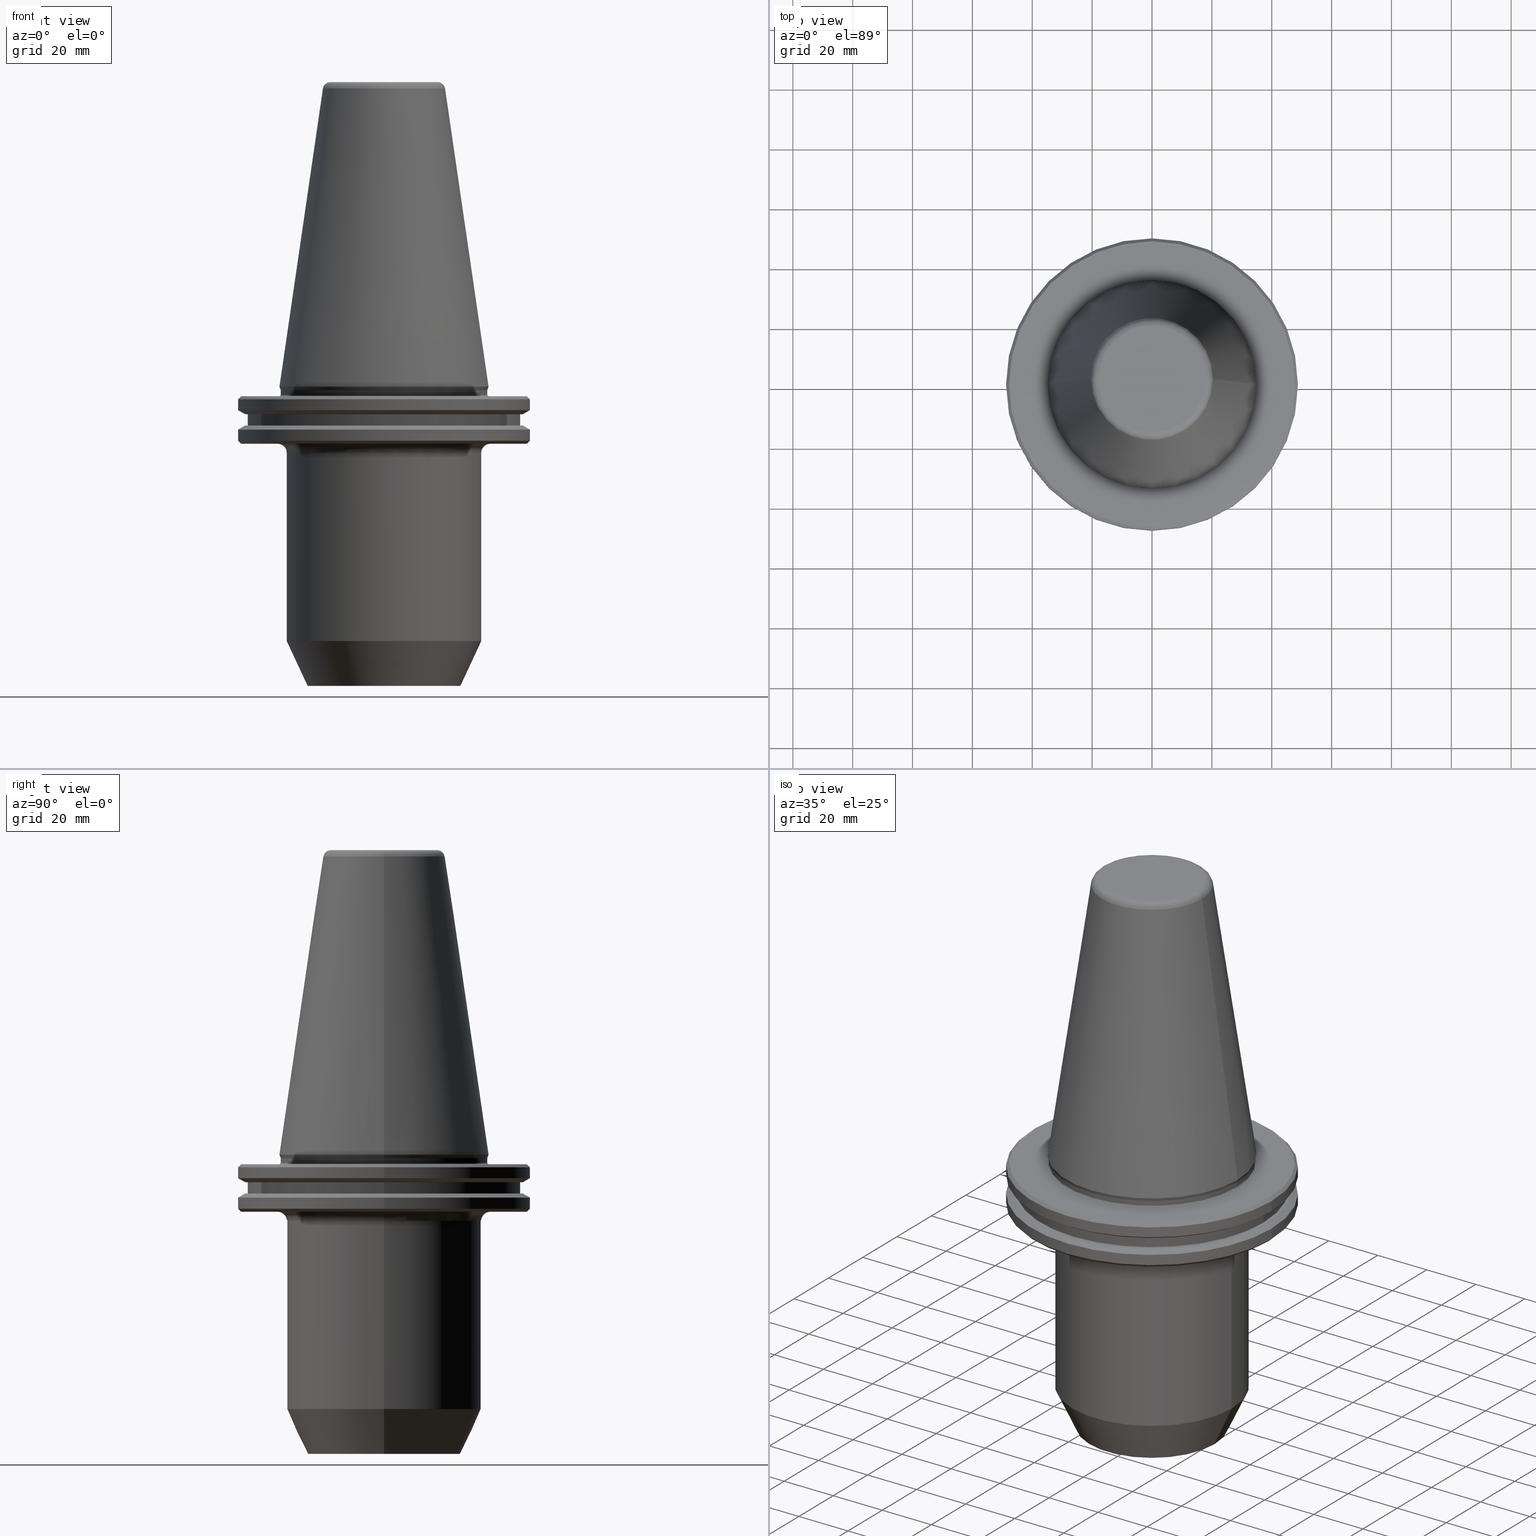
[diagram: canonical four-view strip — front | top / right | iso, engineering-drawing reading convention]
A machine part, canonical four-view strip (front | top / right | iso — engineering-drawing reading convention). The complete STEP part file that produces these views, byte-faithful:
ISO-10303-21;
HEADER;
FILE_DESCRIPTION (( 'STEP AP203' ),
    '1' );
FILE_NAME ('SK50 WE25 100 AD-6.3G15000 SL.STEP',
    '2019-04-30T05:23:39',
    ( '' ),
    ( '' ),
    'SwSTEP 2.0',
    'SolidWorks 2014',
    '' );
FILE_SCHEMA (( 'CONFIG_CONTROL_DESIGN' ));
ENDSEC;

DATA;
#1 = ORIENTED_EDGE ( 'NONE', *, *, #386, .F. ) ;
#2 = ADVANCED_FACE ( 'NONE', ( #699 ), #261, .T. ) ;
#3 = DIRECTION ( 'NONE',  ( -0.1443082234293891500, 0.0000000000000000000, -0.9895327870518760800 ) ) ;
#4 = ORIENTED_EDGE ( 'NONE', *, *, #379, .T. ) ;
#5 = DIRECTION ( 'NONE',  ( -1.000000000000000000, 0.0000000000000000000, 0.0000000000000000000 ) ) ;
#6 = APPROVAL_PERSON_ORGANIZATION ( #218, #324, #969 ) ;
#7 = ORIENTED_EDGE ( 'NONE', *, *, #539, .T. ) ;
#8 = EDGE_LOOP ( 'NONE', ( #395, #701, #487, #201 ) ) ;
#9 = DIRECTION ( 'NONE',  ( 1.000000000000000000, 0.0000000000000000000, 0.0000000000000000000 ) ) ;
#10 = DIRECTION ( 'NONE',  ( -0.0000000000000000000, -0.0000000000000000000, 1.000000000000000000 ) ) ;
#11 = ADVANCED_FACE ( 'NONE', ( #654 ), #349, .T. ) ;
#12 = VECTOR ( 'NONE', #574, 999.9999999999998900 ) ;
#13 = DIRECTION ( 'NONE',  ( 0.0000000000000000000, 0.0000000000000000000, -1.000000000000000000 ) ) ;
#14 = LINE ( 'NONE', #598, #229 ) ;
#15 = CIRCLE ( 'NONE', #506, 32.50000000000000000 ) ;
#16 = DIRECTION ( 'NONE',  ( -0.0000000000000000000, -0.0000000000000000000, 1.000000000000000000 ) ) ;
#17 = VERTEX_POINT ( 'NONE', #117 ) ;
#18 = CYLINDRICAL_SURFACE ( 'NONE', #1001, 32.50000000000000000 ) ;
#19 = DIRECTION ( 'NONE',  ( -0.0000000000000000000, -0.0000000000000000000, 1.000000000000000000 ) ) ;
#20 = VECTOR ( 'NONE', #390, 1000.000000000000000 ) ;
#21 = AXIS2_PLACEMENT_3D ( 'NONE', #621, #135, #84 ) ;
#22 = DIRECTION ( 'NONE',  ( -0.0000000000000000000, -0.0000000000000000000, 1.000000000000000000 ) ) ;
#23 = EDGE_CURVE ( 'NONE', #755, #195, #456, .T. ) ;
#24 = CARTESIAN_POINT ( 'NONE',  ( 0.0000000000000000000, 0.0000000000000000000, -2.700000000000091200 ) ) ;
#25 = CARTESIAN_POINT ( 'NONE',  ( 34.99999999999992200, 0.0000000000000000000, -3.199999999999966900 ) ) ;
#26 = ORIENTED_EDGE ( 'NONE', *, *, #360, .F. ) ;
#27 = ORIENTED_EDGE ( 'NONE', *, *, #121, .F. ) ;
#28 = COORDINATED_UNIVERSAL_TIME_OFFSET ( 5, 30, .AHEAD. ) ;
#29 = EDGE_CURVE ( 'NONE', #126, #64, #951, .T. ) ;
#30 = ORIENTED_EDGE ( 'NONE', *, *, #588, .F. ) ;
#31 = CARTESIAN_POINT ( 'NONE',  ( 0.0000000000000000000, 0.0000000000000000000, -22.09999999999995200 ) ) ;
#32 = CC_DESIGN_DATE_AND_TIME_ASSIGNMENT ( #421, #566, ( #685 ) ) ;
#33 = CONICAL_SURFACE ( 'NONE', #583, 25.50000000000000000, 0.4363323129985837200 ) ;
#34 = LINE ( 'NONE', #441, #648 ) ;
#35 = CIRCLE ( 'NONE', #568, 2.999999999999999100 ) ;
#36 = EDGE_CURVE ( 'NONE', #567, #210, #138, .T. ) ;
#37 = EDGE_LOOP ( 'NONE', ( #876, #971, #736, #812 ) ) ;
#38 = CIRCLE ( 'NONE', #664, 48.74999999999995700 ) ;
#39 = AXIS2_PLACEMENT_3D ( 'NONE', #315, #993, #388 ) ;
#40 = CARTESIAN_POINT ( 'NONE',  ( 0.0000000000000000000, 0.0000000000000000000, 158.1180504483445200 ) ) ;
#41 = DIRECTION ( 'NONE',  ( -0.3420201433257963300, 4.188538737678555300E-017, 0.9396926207858620200 ) ) ;
#42 = FACE_OUTER_BOUND ( 'NONE', #221, .T. ) ;
#43 = ADVANCED_FACE ( 'NONE', ( #546 ), #928, .F. ) ;
#44 = DIRECTION ( 'NONE',  ( 1.000000000000000000, 0.0000000000000000000, 0.0000000000000000000 ) ) ;
#45 = AXIS2_PLACEMENT_3D ( 'NONE', #205, #948, #362 ) ;
#46 = AXIS2_PLACEMENT_3D ( 'NONE', #277, #265, #418 ) ;
#47 = ORIENTED_EDGE ( 'NONE', *, *, #890, .F. ) ;
#48 = DIRECTION ( 'NONE',  ( 1.000000000000000000, 0.0000000000000000000, 0.0000000000000000000 ) ) ;
#49 = DIRECTION ( 'NONE',  ( -0.0000000000000000000, -0.0000000000000000000, 1.000000000000000000 ) ) ;
#50 = EDGE_CURVE ( 'NONE', #292, #430, #727, .T. ) ;
#51 = ORIENTED_EDGE ( 'NONE', *, *, #764, .T. ) ;
#52 = CARTESIAN_POINT ( 'NONE',  ( 48.74999999999995700, 0.0000000000000000000, -7.852404735807838600 ) ) ;
#53 = VERTEX_POINT ( 'NONE', #252 ) ;
#54 = CARTESIAN_POINT ( 'NONE',  ( 34.49999999999995000, 0.0000000000000000000, -2.700000000000091200 ) ) ;
#55 = AXIS2_PLACEMENT_3D ( 'NONE', #163, #995, #397 ) ;
#56 = DATE_AND_TIME ( #268, #468 ) ;
#57 = CARTESIAN_POINT ( 'NONE',  ( 46.37259526419079900, 0.0000000000000000000, -9.224999999999926800 ) ) ;
#58 = ADVANCED_FACE ( 'NONE', ( #326 ), #303, .T. ) ;
#59 = CARTESIAN_POINT ( 'NONE',  ( -46.37259526419124000, 0.0000000000000000000, -12.97500000000006900 ) ) ;
#60 = AXIS2_PLACEMENT_3D ( 'NONE', #774, #535, #618 ) ;
#61 = CONICAL_SURFACE ( 'NONE', #225, 48.74999999999995700, 0.7853981633974482800 ) ;
#62 = CARTESIAN_POINT ( 'NONE',  ( 0.0000000000000000000, 0.0000000000000000000, -14.34759526419204800 ) ) ;
#63 = EDGE_LOOP ( 'NONE', ( #122, #203 ) ) ;
#64 = VERTEX_POINT ( 'NONE', #823 ) ;
#65 = CARTESIAN_POINT ( 'NONE',  ( -48.75000000000018500, 5.970153145843369200E-015, -18.09999999999950400 ) ) ;
#66 = EDGE_CURVE ( 'NONE', #307, #143, #496, .T. ) ;
#67 = CARTESIAN_POINT ( 'NONE',  ( 0.0000000000000000000, 0.0000000000000000000, -14.34759526419204800 ) ) ;
#68 = FACE_OUTER_BOUND ( 'NONE', #376, .T. ) ;
#69 = TOROIDAL_SURFACE ( 'NONE', #575, 17.92446055806129500, 2.500000000000083000 ) ;
#70 = VECTOR ( 'NONE', #463, 1000.000000000000000 ) ;
#71 = EDGE_CURVE ( 'NONE', #307, #755, #906, .T. ) ;
#72 = EDGE_CURVE ( 'NONE', #642, #143, #518, .T. ) ;
#73 = CARTESIAN_POINT ( 'NONE',  ( -48.75000000000018500, 0.0000000000000000000, -14.34759526419204800 ) ) ;
#74 = MANIFOLD_SOLID_BREP ( 'Fillet1', #274 ) ;
#75 = CARTESIAN_POINT ( 'NONE',  ( 0.0000000000000000000, 0.0000000000000000000, -4.199999999999870500 ) ) ;
#76 = SECURITY_CLASSIFICATION_LEVEL ( 'unclassified' ) ;
#77 = AXIS2_PLACEMENT_3D ( 'NONE', #466, #80, #459 ) ;
#78 = EDGE_CURVE ( 'NONE', #505, #301, #750, .T. ) ;
#79 = CARTESIAN_POINT ( 'NONE',  ( 0.0000000000000000000, 0.0000000000000000000, -100.0000000000000000 ) ) ;
#80 = DIRECTION ( 'NONE',  ( -0.0000000000000000000, -0.0000000000000000000, 1.000000000000000000 ) ) ;
#81 = CARTESIAN_POINT ( 'NONE',  ( 0.0000000000000000000, 0.0000000000000000000, -19.09999999999995200 ) ) ;
#82 = ORIENTED_EDGE ( 'NONE', *, *, #561, .T. ) ;
#83 = PERSON_AND_ORGANIZATION ( #251, #760 ) ;
#84 = DIRECTION ( 'NONE',  ( 1.000000000000000000, 0.0000000000000000000, 0.0000000000000000000 ) ) ;
#85 = ADVANCED_FACE ( 'NONE', ( #109 ), #651, .T. ) ;
#86 = TOROIDAL_SURFACE ( 'NONE', #511, 17.92446055806129500, 2.500000000000083000 ) ;
#87 = ORIENTED_EDGE ( 'NONE', *, *, #95, .T. ) ;
#88 = VECTOR ( 'NONE', #41, 999.9999999999998900 ) ;
#89 = EDGE_CURVE ( 'NONE', #430, #292, #863, .T. ) ;
#90 = ORIENTED_EDGE ( 'NONE', *, *, #36, .F. ) ;
#91 = VERTEX_POINT ( 'NONE', #188 ) ;
#92 = DIRECTION ( 'NONE',  ( -0.0000000000000000000, -0.0000000000000000000, 1.000000000000000000 ) ) ;
#93 = AXIS2_PLACEMENT_3D ( 'NONE', #523, #589, #48 ) ;
#94 = DIRECTION ( 'NONE',  ( 1.000000000000000000, 0.0000000000000000000, 0.0000000000000000000 ) ) ;
#95 = EDGE_CURVE ( 'NONE', #143, #934, #682, .T. ) ;
#96 = CARTESIAN_POINT ( 'NONE',  ( 45.50000000000020600, 0.0000000000000000000, -12.97500000000006900 ) ) ;
#97 = VECTOR ( 'NONE', #92, 1000.000000000000000 ) ;
#98 = ORIENTED_EDGE ( 'NONE', *, *, #629, .T. ) ;
#99 = DIRECTION ( 'NONE',  ( -0.0000000000000000000, -0.0000000000000000000, 1.000000000000000000 ) ) ;
#100 = DIRECTION ( 'NONE',  ( 0.0000000000000000000, 0.0000000000000000000, -1.000000000000000000 ) ) ;
#101 = ORIENTED_EDGE ( 'NONE', *, *, #164, .F. ) ;
#102 = PERSON_AND_ORGANIZATION ( #251, #760 ) ;
#103 = DIRECTION ( 'NONE',  ( -0.0000000000000000000, -0.0000000000000000000, 1.000000000000000000 ) ) ;
#104 = EDGE_CURVE ( 'NONE', #610, #715, #275, .T. ) ;
#105 = DIRECTION ( 'NONE',  ( -0.0000000000000000000, -0.0000000000000000000, 1.000000000000000000 ) ) ;
#106 = AXIS2_PLACEMENT_3D ( 'NONE', #341, #118, #729 ) ;
#107 = ORIENTED_EDGE ( 'NONE', *, *, #379, .F. ) ;
#108 = AXIS2_PLACEMENT_3D ( 'NONE', #492, #22, #181 ) ;
#109 = FACE_OUTER_BOUND ( 'NONE', #786, .T. ) ;
#110 =( LENGTH_UNIT ( ) NAMED_UNIT ( * ) SI_UNIT ( .MILLI., .METRE. ) );
#111 = ORIENTED_EDGE ( 'NONE', *, *, #565, .F. ) ;
#112 = EDGE_CURVE ( 'NONE', #755, #307, #477, .T. ) ;
#113 = ADVANCED_FACE ( 'NONE', ( #884 ), #842, .T. ) ;
#114 = ORIENTED_EDGE ( 'NONE', *, *, #662, .F. ) ;
#115 = CARTESIAN_POINT ( 'NONE',  ( 17.92446055806129500, 0.0000000000000000000, 99.25000000000000000 ) ) ;
#116 = DIRECTION ( 'NONE',  ( 0.0000000000000000000, 0.0000000000000000000, -1.000000000000000000 ) ) ;
#117 = CARTESIAN_POINT ( 'NONE',  ( 35.50000000000000700, 0.0000000000000000000, -19.09999999999995200 ) ) ;
#118 = DIRECTION ( 'NONE',  ( -0.0000000000000000000, -0.0000000000000000000, 1.000000000000000000 ) ) ;
#119 = CIRCLE ( 'NONE', #93, 34.49999999999975100 ) ;
#120 = VECTOR ( 'NONE', #788, 1000.000000000000000 ) ;
#121 = EDGE_CURVE ( 'NONE', #715, #610, #38, .T. ) ;
#122 = ORIENTED_EDGE ( 'NONE', *, *, #78, .F. ) ;
#123 = ORIENTED_EDGE ( 'NONE', *, *, #367, .T. ) ;
#124 = EDGE_CURVE ( 'NONE', #307, #497, #258, .T. ) ;
#125 = DIRECTION ( 'NONE',  ( 1.000000000000000000, 0.0000000000000000000, 0.0000000000000000000 ) ) ;
#126 = VERTEX_POINT ( 'NONE', #695 ) ;
#127 = ORIENTED_EDGE ( 'NONE', *, *, #131, .T. ) ;
#128 = ADVANCED_FACE ( 'NONE', ( #453 ), #18, .T. ) ;
#129 = AXIS2_PLACEMENT_3D ( 'NONE', #264, #239, #439 ) ;
#130 = CARTESIAN_POINT ( 'NONE',  ( 0.0000000000000000000, 0.0000000000000000000, -19.09999999999995200 ) ) ;
#131 = EDGE_CURVE ( 'NONE', #301, #558, #635, .T. ) ;
#132 = EDGE_CURVE ( 'NONE', #872, #359, #234, .T. ) ;
#133 = CARTESIAN_POINT ( 'NONE',  ( -17.92446055806129500, 2.195113324887274600E-015, 99.25000000000000000 ) ) ;
#134 = AXIS2_PLACEMENT_3D ( 'NONE', #824, #614, #949 ) ;
#135 = DIRECTION ( 'NONE',  ( -0.0000000000000000000, -0.0000000000000000000, 1.000000000000000000 ) ) ;
#136 = CARTESIAN_POINT ( 'NONE',  ( 34.49999999999975100, 0.0000000000000000000, -1.167677903268715700 ) ) ;
#137 = ORIENTED_EDGE ( 'NONE', *, *, #609, .T. ) ;
#138 = CIRCLE ( 'NONE', #398, 48.74999999999995700 ) ;
#139 = DIRECTION ( 'NONE',  ( 1.000000000000000000, 0.0000000000000000000, 0.0000000000000000000 ) ) ;
#140 = DIRECTION ( 'NONE',  ( -0.0000000000000000000, -0.0000000000000000000, 1.000000000000000000 ) ) ;
#141 = PRODUCT_DEFINITION_FORMATION_WITH_SPECIFIED_SOURCE ( 'ANY', '', #322, .NOT_KNOWN. ) ;
#142 = ORIENTED_EDGE ( 'NONE', *, *, #186, .T. ) ;
#143 = VERTEX_POINT ( 'NONE', #868 ) ;
#144 = DIRECTION ( 'NONE',  ( 1.000000000000000000, 0.0000000000000000000, 0.0000000000000000000 ) ) ;
#145 = FACE_OUTER_BOUND ( 'NONE', #722, .T. ) ;
#146 = EDGE_CURVE ( 'NONE', #642, #325, #613, .T. ) ;
#147 = CARTESIAN_POINT ( 'NONE',  ( 0.0000000000000000000, 46.37259526419124000, -12.97500000000006900 ) ) ;
#148 = APPROVAL_PERSON_ORGANIZATION ( #354, #290, #545 ) ;
#149 = DIRECTION ( 'NONE',  ( -1.000000000000000000, 0.0000000000000000000, 0.0000000000000000000 ) ) ;
#150 = APPROVAL ( #670, 'UNSPECIFIED' ) ;
#151 = CIRCLE ( 'NONE', #134, 34.49999999999995000 ) ;
#152 = ADVANCED_FACE ( 'NONE', ( #818 ), #796, .T. ) ;
#153 = VECTOR ( 'NONE', #256, 1000.000000000000000 ) ;
#154 = ORIENTED_EDGE ( 'NONE', *, *, #675, .F. ) ;
#155 = EDGE_CURVE ( 'NONE', #195, #497, #987, .T. ) ;
#156 = ORIENTED_EDGE ( 'NONE', *, *, #675, .T. ) ;
#157 = EDGE_CURVE ( 'NONE', #257, #710, #206, .T. ) ;
#158 = CARTESIAN_POINT ( 'NONE',  ( 0.0000000000000000000, 0.0000000000000000000, 0.0000000000000000000 ) ) ;
#159 = CARTESIAN_POINT ( 'NONE',  ( -32.50000000000000000, 3.980102097228898600E-015, -84.98845155643314800 ) ) ;
#160 = ADVANCED_FACE ( 'NONE', ( #68 ), #69, .T. ) ;
#161 = CONICAL_SURFACE ( 'NONE', #810, 48.74999999999995700, 0.7853981633974482800 ) ;
#162 = AXIS2_PLACEMENT_3D ( 'NONE', #946, #167, #894 ) ;
#163 = CARTESIAN_POINT ( 'NONE',  ( 0.0000000000000000000, 0.0000000000000000000, -9.224999999999926800 ) ) ;
#164 = EDGE_CURVE ( 'NONE', #64, #765, #450, .T. ) ;
#165 = EDGE_CURVE ( 'NONE', #17, #765, #35, .T. ) ;
#166 = AXIS2_PLACEMENT_3D ( 'NONE', #344, #880, #705 ) ;
#167 = DIRECTION ( 'NONE',  ( -0.0000000000000000000, -0.0000000000000000000, 1.000000000000000000 ) ) ;
#168 = ORIENTED_EDGE ( 'NONE', *, *, #276, .F. ) ;
#169 = DIRECTION ( 'NONE',  ( 0.0000000000000000000, 0.0000000000000000000, -1.000000000000000000 ) ) ;
#170 = ORIENTED_EDGE ( 'NONE', *, *, #728, .F. ) ;
#171 = AXIS2_PLACEMENT_3D ( 'NONE', #944, #366, #807 ) ;
#172 = ORIENTED_EDGE ( 'NONE', *, *, #514, .F. ) ;
#173 = EDGE_LOOP ( 'NONE', ( #811, #783, #830, #250 ) ) ;
#174 = CARTESIAN_POINT ( 'NONE',  ( -46.37259526419079900, 5.679005035844697300E-015, -9.224999999999926800 ) ) ;
#175 = EDGE_CURVE ( 'NONE', #126, #17, #633, .T. ) ;
#176 = VECTOR ( 'NONE', #569, 1000.000000000000100 ) ;
#177 = FACE_OUTER_BOUND ( 'NONE', #688, .T. ) ;
#178 = ORIENTED_EDGE ( 'NONE', *, *, #703, .T. ) ;
#179 = CARTESIAN_POINT ( 'NONE',  ( -34.92500000000009700, 0.0000000000000000000, -5.551115123125782700E-014 ) ) ;
#180 = VERTEX_POINT ( 'NONE', #687 ) ;
#181 = DIRECTION ( 'NONE',  ( 1.000000000000000000, 0.0000000000000000000, 0.0000000000000000000 ) ) ;
#182 = ADVANCED_FACE ( 'NONE', ( #428 ), #408, .T. ) ;
#183 = FACE_OUTER_BOUND ( 'NONE', #962, .T. ) ;
#184 = AXIS2_PLACEMENT_3D ( 'NONE', #147, #209, #966 ) ;
#185 = CC_DESIGN_APPROVAL ( #324, ( #685 ) ) ;
#186 = EDGE_CURVE ( 'NONE', #314, #905, #606, .T. ) ;
#187 = AXIS2_PLACEMENT_3D ( 'NONE', #130, #509, #125 ) ;
#188 = CARTESIAN_POINT ( 'NONE',  ( -46.37259526419079900, 5.824579090844020300E-015, -9.224999999999926800 ) ) ;
#189 = APPROVAL_STATUS ( 'not_yet_approved' ) ;
#190 = EDGE_LOOP ( 'NONE', ( #908, #645, #572, #856 ) ) ;
#191 = ADVANCED_FACE ( 'NONE', ( #254 ), #791, .T. ) ;
#192 = DATE_AND_TIME ( #400, #595 ) ;
#193 = ORIENTED_EDGE ( 'NONE', *, *, #132, .F. ) ;
#194 = ORIENTED_EDGE ( 'NONE', *, *, #561, .F. ) ;
#195 = VERTEX_POINT ( 'NONE', #512 ) ;
#196 = ORIENTED_EDGE ( 'NONE', *, *, #72, .F. ) ;
#197 = AXIS2_PLACEMENT_3D ( 'NONE', #158, #238, #44 ) ;
#198 = CARTESIAN_POINT ( 'NONE',  ( 0.0000000000000000000, 0.0000000000000000000, 99.25000000000000000 ) ) ;
#199 = LINE ( 'NONE', #751, #176 ) ;
#200 = CIRCLE ( 'NONE', #438, 47.74999999999995700 ) ;
#201 = ORIENTED_EDGE ( 'NONE', *, *, #707, .F. ) ;
#202 = PERSON_AND_ORGANIZATION_ROLE ( 'classification_officer' ) ;
#203 = ORIENTED_EDGE ( 'NONE', *, *, #500, .F. ) ;
#204 = CC_DESIGN_APPROVAL ( #150, ( #141 ) ) ;
#205 = CARTESIAN_POINT ( 'NONE',  ( 0.0000000000000000000, 0.0000000000000000000, -22.09999999999995200 ) ) ;
#206 = CIRCLE ( 'NONE', #411, 0.4999999999999726900 ) ;
#207 = FACE_OUTER_BOUND ( 'NONE', #8, .T. ) ;
#208 = DIRECTION ( 'NONE',  ( 1.000000000000000000, 0.0000000000000000000, 0.0000000000000000000 ) ) ;
#209 = DIRECTION ( 'NONE',  ( 0.0000000000000000000, 0.0000000000000000000, -1.000000000000000000 ) ) ;
#210 = VERTEX_POINT ( 'NONE', #940 ) ;
#211 = AXIS2_PLACEMENT_3D ( 'NONE', #743, #690, #901 ) ;
#212 = DIRECTION ( 'NONE',  ( -0.0000000000000000000, -0.0000000000000000000, 1.000000000000000000 ) ) ;
#213 = DIRECTION ( 'NONE',  ( 0.0000000000000000000, 0.0000000000000000000, -1.000000000000000000 ) ) ;
#214 = VERTEX_POINT ( 'NONE', #96 ) ;
#215 = AXIS2_PLACEMENT_3D ( 'NONE', #941, #608, #433 ) ;
#216 = EDGE_LOOP ( 'NONE', ( #679, #781, #419, #596 ) ) ;
#217 = ADVANCED_FACE ( 'NONE', ( #230 ), #378, .F. ) ;
#218 = PERSON_AND_ORGANIZATION ( #251, #760 ) ;
#219 = ORIENTED_EDGE ( 'NONE', *, *, #532, .T. ) ;
#220 = DIRECTION ( 'NONE',  ( 1.000000000000000000, 0.0000000000000000000, 0.0000000000000000000 ) ) ;
#221 = EDGE_LOOP ( 'NONE', ( #351, #375, #123, #531 ) ) ;
#222 = ORIENTED_EDGE ( 'NONE', *, *, #361, .F. ) ;
#223 = CARTESIAN_POINT ( 'NONE',  ( 0.0000000000000000000, 0.0000000000000000000, -3.199999999999869600 ) ) ;
#224 = CARTESIAN_POINT ( 'NONE',  ( 25.50000000000000000, 0.0000000000000000000, -100.0000000000000000 ) ) ;
#225 = AXIS2_PLACEMENT_3D ( 'NONE', #617, #291, #897 ) ;
#226 = CC_DESIGN_PERSON_AND_ORGANIZATION_ASSIGNMENT ( #643, #504, ( #141 ) ) ;
#227 = CONICAL_SURFACE ( 'NONE', #865, 34.92500000000009700, 0.1448138426689039600 ) ;
#228 = DIRECTION ( 'NONE',  ( 1.000000000000000000, 0.0000000000000000000, 0.0000000000000000000 ) ) ;
#229 = VECTOR ( 'NONE', #833, 1000.000000000000000 ) ;
#230 = FACE_OUTER_BOUND ( 'NONE', #570, .T. ) ;
#231 = DIRECTION ( 'NONE',  ( -1.000000000000000000, 0.0000000000000000000, 0.0000000000000000000 ) ) ;
#232 = ORIENTED_EDGE ( 'NONE', *, *, #460, .F. ) ;
#233 = DIRECTION ( 'NONE',  ( 1.000000000000000000, 0.0000000000000000000, 0.0000000000000000000 ) ) ;
#234 = CIRCLE ( 'NONE', #847, 45.50000000000020600 ) ;
#235 = CC_DESIGN_PERSON_AND_ORGANIZATION_ASSIGNMENT ( #102, #681, ( #607 ) ) ;
#236 = CARTESIAN_POINT ( 'NONE',  ( 20.39829252569114000, 3.387574655494023600E-015, 99.61077055857353500 ) ) ;
#237 = LINE ( 'NONE', #779, #20 ) ;
#238 = DIRECTION ( 'NONE',  ( 0.0000000000000000000, 0.0000000000000000000, 1.000000000000000000 ) ) ;
#239 = DIRECTION ( 'NONE',  ( 0.0000000000000000000, -0.0000000000000000000, 1.000000000000000000 ) ) ;
#240 = DIRECTION ( 'NONE',  ( 1.000000000000000000, 0.0000000000000000000, 0.0000000000000000000 ) ) ;
#241 = DIRECTION ( 'NONE',  ( -0.0000000000000000000, -0.0000000000000000000, 1.000000000000000000 ) ) ;
#242 = AXIS2_PLACEMENT_3D ( 'NONE', #343, #16, #255 ) ;
#243 = CC_DESIGN_DATE_AND_TIME_ASSIGNMENT ( #293, #819, ( #607 ) ) ;
#244 = CARTESIAN_POINT ( 'NONE',  ( 0.0000000000000000000, 0.0000000000000000000, 158.1180504483445200 ) ) ;
#245 = DIRECTION ( 'NONE',  ( -0.0000000000000000000, -0.0000000000000000000, 1.000000000000000000 ) ) ;
#246 = EDGE_LOOP ( 'NONE', ( #955, #803 ) ) ;
#247 = AXIS2_PLACEMENT_3D ( 'NONE', #330, #910, #370 ) ;
#248 = DIRECTION ( 'NONE',  ( -0.0000000000000000000, -0.0000000000000000000, 1.000000000000000000 ) ) ;
#249 = PERSON_AND_ORGANIZATION ( #251, #760 ) ;
#250 = ORIENTED_EDGE ( 'NONE', *, *, #721, .F. ) ;
#251 = PERSON ( 'UNSPECIFIED', 'UNSPECIFIED', 'UNSPECIFIED', ('UNSPECIFIED'), ('UNSPECIFIED'), ('UNSPECIFIED') ) ;
#252 = CARTESIAN_POINT ( 'NONE',  ( -34.49999999999995000, 4.255647627037044800E-015, -2.700000000000091200 ) ) ;
#253 = FACE_OUTER_BOUND ( 'NONE', #915, .T. ) ;
#254 = FACE_OUTER_BOUND ( 'NONE', #266, .T. ) ;
#255 = DIRECTION ( 'NONE',  ( 1.000000000000000000, 0.0000000000000000000, 0.0000000000000000000 ) ) ;
#256 = DIRECTION ( 'NONE',  ( -0.7071067811865474600, 8.659560562354931600E-017, 0.7071067811865475700 ) ) ;
#257 = VERTEX_POINT ( 'NONE', #54 ) ;
#258 = CIRCLE ( 'NONE', #658, 2.500000000000082200 ) ;
#259 = ADVANCED_FACE ( 'NONE', ( #982 ), #814, .F. ) ;
#260 = AXIS2_PLACEMENT_3D ( 'NONE', #984, #525, #510 ) ;
#261 = CYLINDRICAL_SURFACE ( 'NONE', #904, 48.75000000000018500 ) ;
#262 = CIRCLE ( 'NONE', #320, 48.74999999999995700 ) ;
#263 = DIRECTION ( 'NONE',  ( 0.0000000000000000000, 0.0000000000000000000, -1.000000000000000000 ) ) ;
#264 = CARTESIAN_POINT ( 'NONE',  ( 0.0000000000000000000, 46.37259526419079900, -9.224999999999926800 ) ) ;
#265 = DIRECTION ( 'NONE',  ( -0.0000000000000000000, -0.0000000000000000000, 1.000000000000000000 ) ) ;
#266 = EDGE_LOOP ( 'NONE', ( #816, #622, #620, #27 ) ) ;
#267 = ORIENTED_EDGE ( 'NONE', *, *, #588, .T. ) ;
#268 = CALENDAR_DATE ( 2019, 30, 4 ) ;
#269 = AXIS2_PLACEMENT_3D ( 'NONE', #384, #989, #669 ) ;
#270 = FACE_OUTER_BOUND ( 'NONE', #278, .T. ) ;
#271 = CIRCLE ( 'NONE', #215, 46.37259526419124000 ) ;
#272 = AXIS2_PLACEMENT_3D ( 'NONE', #373, #369, #593 ) ;
#273 = EDGE_LOOP ( 'NONE', ( #476, #156, #26, #1 ) ) ;
#274 = CLOSED_SHELL ( 'NONE', ( #674, #795, #128, #160, #974, #58, #300, #259, #777, #113, #462, #345, #926, #2, #11, #338, #217, #472, #152, #182, #467, #719, #549, #191, #943, #404, #871, #43, #881, #85, #350, #923, #686, #929, #312, #877 ) ) ;
#275 = CIRCLE ( 'NONE', #748, 48.74999999999995700 ) ;
#276 = EDGE_CURVE ( 'NONE', #558, #983, #15, .T. ) ;
#277 = CARTESIAN_POINT ( 'NONE',  ( 0.0000000000000000000, 0.0000000000000000000, -3.199999999999869600 ) ) ;
#278 = EDGE_LOOP ( 'NONE', ( #232, #219, #749, #680 ) ) ;
#279 = LINE ( 'NONE', #640, #70 ) ;
#280 = DIRECTION ( 'NONE',  ( 1.000000000000000000, 0.0000000000000000000, 0.0000000000000000000 ) ) ;
#281 = CC_DESIGN_PERSON_AND_ORGANIZATION_ASSIGNMENT ( #554, #319, ( #322 ) ) ;
#282 = CARTESIAN_POINT ( 'NONE',  ( -25.50000000000000000, 3.122849337825750200E-015, -100.0000000000000000 ) ) ;
#283 = CARTESIAN_POINT ( 'NONE',  ( 47.74999999999995700, 5.908920805885974100E-015, -3.199999999999869600 ) ) ;
#284 = CARTESIAN_POINT ( 'NONE',  ( 34.99999999999992200, 0.0000000000000000000, -2.700000000000091200 ) ) ;
#285 = EDGE_CURVE ( 'NONE', #597, #827, #200, .T. ) ;
#286 = FACE_OUTER_BOUND ( 'NONE', #650, .T. ) ;
#287 = CARTESIAN_POINT ( 'NONE',  ( 0.0000000000000000000, 0.0000000000000000000, -5.551115123125782700E-014 ) ) ;
#288 = CARTESIAN_POINT ( 'NONE',  ( 25.50000000000000000, 0.0000000000000000000, -100.0000000000000000 ) ) ;
#289 = AXIS2_PLACEMENT_3D ( 'NONE', #62, #415, #94 ) ;
#290 = APPROVAL ( #747, 'UNSPECIFIED' ) ;
#291 = DIRECTION ( 'NONE',  ( 0.0000000000000000000, 0.0000000000000000000, -1.000000000000000000 ) ) ;
#292 = VERTEX_POINT ( 'NONE', #65 ) ;
#293 = DATE_AND_TIME ( #488, #702 ) ;
#294 = CARTESIAN_POINT ( 'NONE',  ( 48.74999999999995700, 5.970153145843342400E-015, -4.199999999999870500 ) ) ;
#295 = CARTESIAN_POINT ( 'NONE',  ( 0.0000000000000000000, 17.92446055806129500, 101.7500000000000100 ) ) ;
#296 = AXIS2_PLACEMENT_3D ( 'NONE', #347, #387, #930 ) ;
#297 = VECTOR ( 'NONE', #520, 1000.000000000000000 ) ;
#298 = DIRECTION ( 'NONE',  ( 1.000000000000000000, 0.0000000000000000000, 0.0000000000000000000 ) ) ;
#299 = CARTESIAN_POINT ( 'NONE',  ( 0.0000000000000000000, 0.0000000000000000000, -2.700000000000091200 ) ) ;
#300 = ADVANCED_FACE ( 'NONE', ( #578 ), #763, .T. ) ;
#301 = VERTEX_POINT ( 'NONE', #515 ) ;
#302 = DIRECTION ( 'NONE',  ( 1.000000000000000000, 0.0000000000000000000, 0.0000000000000000000 ) ) ;
#303 = CONICAL_SURFACE ( 'NONE', #323, 34.49999999999975100, 0.3490658503990017300 ) ;
#304 = DIRECTION ( 'NONE',  ( 1.000000000000000000, 0.0000000000000000000, 0.0000000000000000000 ) ) ;
#305 = ORIENTED_EDGE ( 'NONE', *, *, #994, .F. ) ;
#306 = DIRECTION ( 'NONE',  ( 1.000000000000000000, 0.0000000000000000000, 0.0000000000000000000 ) ) ;
#307 = VERTEX_POINT ( 'NONE', #446 ) ;
#308 = AXIS2_PLACEMENT_3D ( 'NONE', #244, #371, #311 ) ;
#309 = CC_DESIGN_APPROVAL ( #290, ( #607 ) ) ;
#310 = CARTESIAN_POINT ( 'NONE',  ( -47.74999999999973700, 5.908920805885974100E-015, -19.09999999999995200 ) ) ;
#311 = DIRECTION ( 'NONE',  ( 1.000000000000000000, 0.0000000000000000000, 0.0000000000000000000 ) ) ;
#312 = ADVANCED_FACE ( 'NONE', ( #556 ), #902, .F. ) ;
#313 = CONICAL_SURFACE ( 'NONE', #269, 34.92500000000009700, 0.1448138426689039600 ) ;
#314 = VERTEX_POINT ( 'NONE', #59 ) ;
#315 = CARTESIAN_POINT ( 'NONE',  ( -34.99999999999992200, 4.286263797015727000E-015, -2.700000000000091200 ) ) ;
#316 = ORIENTED_EDGE ( 'NONE', *, *, #678, .T. ) ;
#317 = AXIS2_PLACEMENT_3D ( 'NONE', #797, #103, #564 ) ;
#318 = DIRECTION ( 'NONE',  ( 1.000000000000000000, 0.0000000000000000000, 0.0000000000000000000 ) ) ;
#319 = PERSON_AND_ORGANIZATION_ROLE ( 'design_owner' ) ;
#320 = AXIS2_PLACEMENT_3D ( 'NONE', #887, #540, #745 ) ;
#321 = ORIENTED_EDGE ( 'NONE', *, *, #112, .F. ) ;
#322 = PRODUCT ( 'SK50 WE25 100 AD-6.3G15000 SL', 'SK50 WE25 100 AD-6.3G15000 SL', '', ( #603 ) ) ;
#323 = AXIS2_PLACEMENT_3D ( 'NONE', #801, #649, #508 ) ;
#324 = APPROVAL ( #189, 'UNSPECIFIED' ) ;
#325 = VERTEX_POINT ( 'NONE', #136 ) ;
#326 = FACE_OUTER_BOUND ( 'NONE', #452, .T. ) ;
#327 = AXIS2_PLACEMENT_3D ( 'NONE', #977, #832, #298 ) ;
#328 = PRODUCT_RELATED_PRODUCT_CATEGORY ( 'detail', '', ( #322 ) ) ;
#329 = ORIENTED_EDGE ( 'NONE', *, *, #532, .F. ) ;
#330 = CARTESIAN_POINT ( 'NONE',  ( 0.0000000000000000000, 0.0000000000000000000, -19.09999999999995200 ) ) ;
#331 = EDGE_CURVE ( 'NONE', #497, #195, #958, .T. ) ;
#332 = DIRECTION ( 'NONE',  ( 1.000000000000000000, 0.0000000000000000000, 0.0000000000000000000 ) ) ;
#333 = FACE_OUTER_BOUND ( 'NONE', #782, .T. ) ;
#334 = VECTOR ( 'NONE', #965, 1000.000000000000000 ) ;
#335 = CIRCLE ( 'NONE', #289, 48.75000000000018500 ) ;
#336 = ORIENTED_EDGE ( 'NONE', *, *, #348, .F. ) ;
#337 = ORIENTED_EDGE ( 'NONE', *, *, #500, .T. ) ;
#338 = ADVANCED_FACE ( 'NONE', ( #837, #177 ), #746, .F. ) ;
#339 = EDGE_LOOP ( 'NONE', ( #352, #927 ) ) ;
#340 = AXIS2_PLACEMENT_3D ( 'NONE', #636, #537, #318 ) ;
#341 = CARTESIAN_POINT ( 'NONE',  ( 0.0000000000000000000, 0.0000000000000000000, -19.09999999999995200 ) ) ;
#342 = DATE_AND_TIME ( #945, #733 ) ;
#343 = CARTESIAN_POINT ( 'NONE',  ( 0.0000000000000000000, 0.0000000000000000000, -3.199999999999869600 ) ) ;
#344 = CARTESIAN_POINT ( 'NONE',  ( 0.0000000000000000000, 0.0000000000000000000, -12.97500000000006900 ) ) ;
#345 = ADVANCED_FACE ( 'NONE', ( #381 ), #529, .T. ) ;
#346 = AXIS2_PLACEMENT_3D ( 'NONE', #753, #600, #758 ) ;
#347 = CARTESIAN_POINT ( 'NONE',  ( 0.0000000000000000000, 0.0000000000000000000, -100.0000000000000000 ) ) ;
#348 = EDGE_CURVE ( 'NONE', #809, #292, #357, .T. ) ;
#349 = CONICAL_SURFACE ( 'NONE', #896, 47.74999999999973700, 0.7853981633974482800 ) ;
#350 = ADVANCED_FACE ( 'NONE', ( #938 ), #313, .T. ) ;
#351 = ORIENTED_EDGE ( 'NONE', *, *, #716, .F. ) ;
#352 = ORIENTED_EDGE ( 'NONE', *, *, #678, .F. ) ;
#353 = ORIENTED_EDGE ( 'NONE', *, *, #361, .T. ) ;
#354 = PERSON_AND_ORGANIZATION ( #251, #760 ) ;
#355 = DIRECTION ( 'NONE',  ( 0.0000000000000000000, 0.0000000000000000000, -1.000000000000000000 ) ) ;
#356 = LINE ( 'NONE', #73, #790 ) ;
#357 = LINE ( 'NONE', #713, #153 ) ;
#358 = ORIENTED_EDGE ( 'NONE', *, *, #50, .F. ) ;
#359 = VERTEX_POINT ( 'NONE', #454 ) ;
#360 = EDGE_CURVE ( 'NONE', #726, #465, #335, .T. ) ;
#361 = EDGE_CURVE ( 'NONE', #755, #934, #503, .T. ) ;
#362 = DIRECTION ( 'NONE',  ( 1.000000000000000000, 0.0000000000000000000, 0.0000000000000000000 ) ) ;
#363 = CARTESIAN_POINT ( 'NONE',  ( 0.0000000000000000000, 0.0000000000000000000, -1.167677903268715700 ) ) ;
#364 = LINE ( 'NONE', #174, #389 ) ;
#365 = AXIS2_PLACEMENT_3D ( 'NONE', #677, #601, #302 ) ;
#366 = DIRECTION ( 'NONE',  ( -0.0000000000000000000, -0.0000000000000000000, 1.000000000000000000 ) ) ;
#367 = EDGE_CURVE ( 'NONE', #214, #872, #718, .T. ) ;
#368 = PERSON_AND_ORGANIZATION_ROLE ( 'design_supplier' ) ;
#369 = DIRECTION ( 'NONE',  ( 0.0000000000000000000, -0.0000000000000000000, 1.000000000000000000 ) ) ;
#370 = DIRECTION ( 'NONE',  ( 1.000000000000000000, 0.0000000000000000000, 0.0000000000000000000 ) ) ;
#371 = DIRECTION ( 'NONE',  ( -0.0000000000000000000, -0.0000000000000000000, 1.000000000000000000 ) ) ;
#372 = EDGE_LOOP ( 'NONE', ( #154, #382, #959, #499 ) ) ;
#373 = CARTESIAN_POINT ( 'NONE',  ( 0.0000000000000000000, 47.74999999999973700, -19.09999999999995200 ) ) ;
#374 = CARTESIAN_POINT ( 'NONE',  ( 0.0000000000000000000, 0.0000000000000000000, -9.224999999999926800 ) ) ;
#375 = ORIENTED_EDGE ( 'NONE', *, *, #514, .T. ) ;
#376 = EDGE_LOOP ( 'NONE', ( #875, #579, #792, #592 ) ) ;
#377 = DIRECTION ( 'NONE',  ( -0.0000000000000000000, -0.0000000000000000000, 1.000000000000000000 ) ) ;
#378 = PLANE ( 'NONE',  #490 ) ;
#379 = EDGE_CURVE ( 'NONE', #953, #809, #914, .T. ) ;
#380 = CIRCLE ( 'NONE', #162, 45.50000000000020600 ) ;
#381 = FACE_OUTER_BOUND ( 'NONE', #997, .T. ) ;
#382 = ORIENTED_EDGE ( 'NONE', *, *, #50, .T. ) ;
#383 = EDGE_LOOP ( 'NONE', ( #4, #793, #582, #475 ) ) ;
#384 = CARTESIAN_POINT ( 'NONE',  ( 0.0000000000000000000, 0.0000000000000000000, -5.551115123125782700E-014 ) ) ;
#385 = DIRECTION ( 'NONE',  ( 0.0000000000000000000, 0.0000000000000000000, -1.000000000000000000 ) ) ;
#386 = EDGE_CURVE ( 'NONE', #430, #726, #889, .T. ) ;
#387 = DIRECTION ( 'NONE',  ( -0.0000000000000000000, -0.0000000000000000000, 1.000000000000000000 ) ) ;
#388 = DIRECTION ( 'NONE',  ( -1.000000000000000000, 1.224646799147355700E-016, 0.0000000000000000000 ) ) ;
#389 = VECTOR ( 'NONE', #826, 1000.000000000000000 ) ;
#390 = DIRECTION ( 'NONE',  ( -0.0000000000000000000, -0.0000000000000000000, 1.000000000000000000 ) ) ;
#391 = ORIENTED_EDGE ( 'NONE', *, *, #728, .T. ) ;
#392 = DIRECTION ( 'NONE',  ( -0.0000000000000000000, -0.0000000000000000000, 1.000000000000000000 ) ) ;
#393 = AXIS2_PLACEMENT_3D ( 'NONE', #967, #443, #899 ) ;
#394 = DIRECTION ( 'NONE',  ( -0.0000000000000000000, -0.0000000000000000000, 1.000000000000000000 ) ) ;
#395 = ORIENTED_EDGE ( 'NONE', *, *, #402, .F. ) ;
#396 = DIRECTION ( 'NONE',  ( -0.0000000000000000000, -0.0000000000000000000, 1.000000000000000000 ) ) ;
#397 = DIRECTION ( 'NONE',  ( 1.000000000000000000, 0.0000000000000000000, 0.0000000000000000000 ) ) ;
#398 = AXIS2_PLACEMENT_3D ( 'NONE', #75, #850, #772 ) ;
#399 = EDGE_LOOP ( 'NONE', ( #222, #626, #403, #87 ) ) ;
#400 = CALENDAR_DATE ( 2019, 30, 4 ) ;
#401 = ORIENTED_EDGE ( 'NONE', *, *, #716, .T. ) ;
#402 = EDGE_CURVE ( 'NONE', #827, #597, #735, .T. ) ;
#403 = ORIENTED_EDGE ( 'NONE', *, *, #66, .T. ) ;
#404 = ADVANCED_FACE ( 'NONE', ( #286 ), #61, .T. ) ;
#405 = ORIENTED_EDGE ( 'NONE', *, *, #157, .F. ) ;
#406 = CC_DESIGN_PERSON_AND_ORGANIZATION_ASSIGNMENT ( #249, #202, ( #685 ) ) ;
#407 = CONICAL_SURFACE ( 'NONE', #187, 47.74999999999973700, 0.7853981633974482800 ) ;
#408 = CONICAL_SURFACE ( 'NONE', #542, 48.75000000000018500, 1.047197551196599400 ) ;
#409 = ORIENTED_EDGE ( 'NONE', *, *, #703, .F. ) ;
#410 = FACE_OUTER_BOUND ( 'NONE', #851, .T. ) ;
#411 = AXIS2_PLACEMENT_3D ( 'NONE', #284, #739, #169 ) ;
#412 = CARTESIAN_POINT ( 'NONE',  ( 0.0000000000000000000, 0.0000000000000000000, -12.97500000000006900 ) ) ;
#413 = CYLINDRICAL_SURFACE ( 'NONE', #825, 45.50000000000020600 ) ;
#414 = DIRECTION ( 'NONE',  ( -0.0000000000000000000, -0.0000000000000000000, 1.000000000000000000 ) ) ;
#415 = DIRECTION ( 'NONE',  ( -0.0000000000000000000, -0.0000000000000000000, 1.000000000000000000 ) ) ;
#416 = DIRECTION ( 'NONE',  ( 0.7071067811865474600, 8.659560562354931600E-017, -0.7071067811865475700 ) ) ;
#417 = DIRECTION ( 'NONE',  ( -0.0000000000000000000, -0.0000000000000000000, 1.000000000000000000 ) ) ;
#418 = DIRECTION ( 'NONE',  ( 1.000000000000000000, 0.0000000000000000000, 0.0000000000000000000 ) ) ;
#419 = ORIENTED_EDGE ( 'NONE', *, *, #23, .T. ) ;
#420 = EDGE_LOOP ( 'NONE', ( #329, #931, #522, #954 ) ) ;
#421 = DATE_AND_TIME ( #625, #829 ) ;
#422 = CARTESIAN_POINT ( 'NONE',  ( 48.75000000000018500, 0.0000000000000000000, -14.34759526419204800 ) ) ;
#423 = ORIENTED_EDGE ( 'NONE', *, *, #526, .F. ) ;
#424 = ORIENTED_EDGE ( 'NONE', *, *, #95, .F. ) ;
#425 = EDGE_CURVE ( 'NONE', #953, #430, #474, .T. ) ;
#426 = LINE ( 'NONE', #458, #834 ) ;
#427 = FACE_BOUND ( 'NONE', #738, .T. ) ;
#428 = FACE_OUTER_BOUND ( 'NONE', #420, .T. ) ;
#429 = DESIGN_CONTEXT ( 'detailed design', #756, 'design' ) ;
#430 = VERTEX_POINT ( 'NONE', #660 ) ;
#431 = ORIENTED_EDGE ( 'NONE', *, *, #104, .T. ) ;
#432 = VECTOR ( 'NONE', #494, 1000.000000000000000 ) ;
#433 = DIRECTION ( 'NONE',  ( 1.000000000000000000, 0.0000000000000000000, 0.0000000000000000000 ) ) ;
#434 = VECTOR ( 'NONE', #770, 1000.000000000000000 ) ;
#435 = DIRECTION ( 'NONE',  ( 1.000000000000000000, 0.0000000000000000000, 0.0000000000000000000 ) ) ;
#436 = APPLICATION_PROTOCOL_DEFINITION ( 'international standard', 'config_control_design', 1994, #581 ) ;
#437 = EDGE_LOOP ( 'NONE', ( #194, #784, #444, #405 ) ) ;
#438 = AXIS2_PLACEMENT_3D ( 'NONE', #223, #676, #139 ) ;
#439 = DIRECTION ( 'NONE',  ( 1.000000000000000000, 0.0000000000000000000, 0.0000000000000000000 ) ) ;
#440 = ORIENTED_EDGE ( 'NONE', *, *, #285, .F. ) ;
#441 = CARTESIAN_POINT ( 'NONE',  ( 34.49999999999985100, 0.0000000000000000000, 101.7499999999999600 ) ) ;
#442 = PERSON_AND_ORGANIZATION ( #251, #760 ) ;
#443 = DIRECTION ( 'NONE',  ( -0.0000000000000000000, -0.0000000000000000000, 1.000000000000000000 ) ) ;
#444 = ORIENTED_EDGE ( 'NONE', *, *, #639, .T. ) ;
#445 = CARTESIAN_POINT ( 'NONE',  ( -48.74999999999995700, 5.970153145843342400E-015, -7.852404735807838600 ) ) ;
#446 = CARTESIAN_POINT ( 'NONE',  ( -20.39829252569114000, 0.0000000000000000000, 99.61077055857353500 ) ) ;
#447 = DIRECTION ( 'NONE',  ( -1.000000000000000000, 0.0000000000000000000, -0.0000000000000000000 ) ) ;
#448 = CONICAL_SURFACE ( 'NONE', #576, 48.75000000000018500, 1.047197551196599400 ) ;
#449 = LINE ( 'NONE', #672, #813 ) ;
#450 = CIRCLE ( 'NONE', #590, 32.50000000000000000 ) ;
#451 = DIRECTION ( 'NONE',  ( -0.0000000000000000000, -0.0000000000000000000, 1.000000000000000000 ) ) ;
#452 = EDGE_LOOP ( 'NONE', ( #98, #714, #111, #305 ) ) ;
#453 = FACE_OUTER_BOUND ( 'NONE', #634, .T. ) ;
#454 = CARTESIAN_POINT ( 'NONE',  ( -45.50000000000020600, 5.572142936120482400E-015, -9.224999999999926800 ) ) ;
#455 = CARTESIAN_POINT ( 'NONE',  ( 34.92500000000009700, 0.0000000000000000000, -5.551115123125782700E-014 ) ) ;
#456 = CIRCLE ( 'NONE', #925, 2.500000000000085300 ) ;
#457 = LINE ( 'NONE', #696, #434 ) ;
#458 = CARTESIAN_POINT ( 'NONE',  ( -32.50000000000000000, 3.980102097228898600E-015, 158.1180504483445200 ) ) ;
#459 = DIRECTION ( 'NONE',  ( 1.000000000000000000, 0.0000000000000000000, 0.0000000000000000000 ) ) ;
#460 = EDGE_CURVE ( 'NONE', #905, #314, #271, .T. ) ;
#461 = DIRECTION ( 'NONE',  ( -0.0000000000000000000, -0.0000000000000000000, 1.000000000000000000 ) ) ;
#462 = ADVANCED_FACE ( 'NONE', ( #860 ), #632, .T. ) ;
#463 = DIRECTION ( 'NONE',  ( -0.0000000000000000000, -0.0000000000000000000, 1.000000000000000000 ) ) ;
#464 = DIRECTION ( 'NONE',  ( 1.000000000000000000, 0.0000000000000000000, 0.0000000000000000000 ) ) ;
#465 = VERTEX_POINT ( 'NONE', #709 ) ;
#466 = CARTESIAN_POINT ( 'NONE',  ( 0.0000000000000000000, 0.0000000000000000000, -3.199999999999869600 ) ) ;
#467 = ADVANCED_FACE ( 'NONE', ( #427, #253 ), #644, .F. ) ;
#468 = LOCAL_TIME ( 10, 53, 39.00000000000000000, #666 ) ;
#469 = CARTESIAN_POINT ( 'NONE',  ( -47.74999999999995700, 0.0000000000000000000, -3.199999999999869600 ) ) ;
#470 = EDGE_CURVE ( 'NONE', #257, #325, #34, .T. ) ;
#471 = AXIS2_PLACEMENT_3D ( 'NONE', #67, #604, #773 ) ;
#472 = ADVANCED_FACE ( 'NONE', ( #866 ), #407, .T. ) ;
#473 = DIRECTION ( 'NONE',  ( 1.000000000000000000, 0.0000000000000000000, 0.0000000000000000000 ) ) ;
#474 = LINE ( 'NONE', #553, #673 ) ;
#475 = ORIENTED_EDGE ( 'NONE', *, *, #425, .F. ) ;
#476 = ORIENTED_EDGE ( 'NONE', *, *, #89, .T. ) ;
#477 = CIRCLE ( 'NONE', #646, 20.39829252569114000 ) ;
#478 = VERTEX_POINT ( 'NONE', #57 ) ;
#479 = CIRCLE ( 'NONE', #46, 34.99999999999992200 ) ;
#480 = DIRECTION ( 'NONE',  ( 1.000000000000000000, 0.0000000000000000000, 0.0000000000000000000 ) ) ;
#481 = VECTOR ( 'NONE', #611, 1000.000000000000000 ) ;
#482 = EDGE_CURVE ( 'NONE', #983, #765, #14, .T. ) ;
#483 = CARTESIAN_POINT ( 'NONE',  ( 0.0000000000000000000, 47.74999999999995700, -3.199999999999869600 ) ) ;
#484 = ORIENTED_EDGE ( 'NONE', *, *, #979, .T. ) ;
#485 = AXIS2_PLACEMENT_3D ( 'NONE', #24, #638, #144 ) ;
#486 = EDGE_CURVE ( 'NONE', #53, #642, #449, .T. ) ;
#487 = ORIENTED_EDGE ( 'NONE', *, *, #36, .T. ) ;
#488 = CALENDAR_DATE ( 2019, 30, 4 ) ;
#489 = CARTESIAN_POINT ( 'NONE',  ( -48.74999999999995700, 0.0000000000000000000, -4.199999999999870500 ) ) ;
#490 = AXIS2_PLACEMENT_3D ( 'NONE', #295, #213, #667 ) ;
#491 = LINE ( 'NONE', #224, #297 ) ;
#492 = CARTESIAN_POINT ( 'NONE',  ( 0.0000000000000000000, 0.0000000000000000000, -5.551115123125782700E-014 ) ) ;
#493 = ORIENTED_EDGE ( 'NONE', *, *, #609, .F. ) ;
#494 = DIRECTION ( 'NONE',  ( -0.4226182617407006100, 5.175581015019673000E-017, 0.9063077870366493800 ) ) ;
#495 = APPLICATION_PROTOCOL_DEFINITION ( 'international standard', 'config_control_design', 1994, #756 ) ;
#496 = LINE ( 'NONE', #179, #712 ) ;
#497 = VERTEX_POINT ( 'NONE', #822 ) ;
#498 = DIRECTION ( 'NONE',  ( -0.0000000000000000000, -0.0000000000000000000, 1.000000000000000000 ) ) ;
#499 = ORIENTED_EDGE ( 'NONE', *, *, #885, .F. ) ;
#500 = EDGE_CURVE ( 'NONE', #301, #505, #605, .T. ) ;
#501 = AXIS2_PLACEMENT_3D ( 'NONE', #754, #140, #919 ) ;
#502 = TOROIDAL_SURFACE ( 'NONE', #45, 35.50000000000000700, 3.000000000000000000 ) ;
#503 = LINE ( 'NONE', #602, #120 ) ;
#504 = PERSON_AND_ORGANIZATION_ROLE ( 'creator' ) ;
#505 = VERTEX_POINT ( 'NONE', #288 ) ;
#506 = AXIS2_PLACEMENT_3D ( 'NONE', #907, #377, #835 ) ;
#507 = EDGE_LOOP ( 'NONE', ( #665, #828 ) ) ;
#508 = DIRECTION ( 'NONE',  ( 1.000000000000000000, 0.0000000000000000000, 0.0000000000000000000 ) ) ;
#509 = DIRECTION ( 'NONE',  ( -0.0000000000000000000, -0.0000000000000000000, 1.000000000000000000 ) ) ;
#510 = DIRECTION ( 'NONE',  ( 1.000000000000000000, 0.0000000000000000000, 0.0000000000000000000 ) ) ;
#511 = AXIS2_PLACEMENT_3D ( 'NONE', #683, #451, #841 ) ;
#512 = CARTESIAN_POINT ( 'NONE',  ( 17.92446055806129500, 0.0000000000000000000, 101.7500000000000900 ) ) ;
#513 = EDGE_LOOP ( 'NONE', ( #975, #891, #986, #101 ) ) ;
#514 = EDGE_CURVE ( 'NONE', #594, #214, #836, .T. ) ;
#515 = CARTESIAN_POINT ( 'NONE',  ( -25.50000000000000000, 3.551475717527324000E-015, -100.0000000000000000 ) ) ;
#516 = DIRECTION ( 'NONE',  ( 0.0000000000000000000, 0.0000000000000000000, -1.000000000000000000 ) ) ;
#517 = DIRECTION ( 'NONE',  ( -0.0000000000000000000, -0.0000000000000000000, 1.000000000000000000 ) ) ;
#518 = LINE ( 'NONE', #656, #88 ) ;
#519 = ADVANCED_BREP_SHAPE_REPRESENTATION ( 'SK50 WE25 100 AD-6.3G15000 SL', ( #74, #197 ), #591 ) ;
#520 = DIRECTION ( 'NONE',  ( 0.4226182617407006100, 0.0000000000000000000, 0.9063077870366493800 ) ) ;
#521 = AXIS2_PLACEMENT_3D ( 'NONE', #858, #517, #240 ) ;
#522 = ORIENTED_EDGE ( 'NONE', *, *, #552, .T. ) ;
#523 = CARTESIAN_POINT ( 'NONE',  ( 0.0000000000000000000, 0.0000000000000000000, -1.167677903268715700 ) ) ;
#524 = CIRCLE ( 'NONE', #471, 48.75000000000018500 ) ;
#525 = DIRECTION ( 'NONE',  ( -0.0000000000000000000, -0.0000000000000000000, 1.000000000000000000 ) ) ;
#526 = EDGE_CURVE ( 'NONE', #827, #567, #981, .T. ) ;
#527 = CARTESIAN_POINT ( 'NONE',  ( 0.0000000000000000000, 0.0000000000000000000, -100.0000000000000000 ) ) ;
#528 = CIRCLE ( 'NONE', #55, 46.37259526419079900 ) ;
#529 = CYLINDRICAL_SURFACE ( 'NONE', #260, 45.50000000000020600 ) ;
#530 = EDGE_LOOP ( 'NONE', ( #431, #391, #90, #30 ) ) ;
#531 = ORIENTED_EDGE ( 'NONE', *, *, #870, .F. ) ;
#532 = EDGE_CURVE ( 'NONE', #905, #726, #199, .T. ) ;
#533 = DIRECTION ( 'NONE',  ( 1.000000000000000000, 0.0000000000000000000, 0.0000000000000000000 ) ) ;
#534 = CARTESIAN_POINT ( 'NONE',  ( 0.0000000000000000000, 0.0000000000000000000, -9.224999999999926800 ) ) ;
#535 = DIRECTION ( 'NONE',  ( -0.0000000000000000000, -0.0000000000000000000, 1.000000000000000000 ) ) ;
#536 = FACE_BOUND ( 'NONE', #339, .T. ) ;
#537 = DIRECTION ( 'NONE',  ( -0.0000000000000000000, -0.0000000000000000000, 1.000000000000000000 ) ) ;
#538 = AXIS2_PLACEMENT_3D ( 'NONE', #412, #19, #480 ) ;
#539 = EDGE_CURVE ( 'NONE', #214, #594, #380, .T. ) ;
#540 = DIRECTION ( 'NONE',  ( -0.0000000000000000000, -0.0000000000000000000, 1.000000000000000000 ) ) ;
#541 = CARTESIAN_POINT ( 'NONE',  ( -45.50000000000020600, 5.572142936120482400E-015, -12.97500000000006900 ) ) ;
#542 = AXIS2_PLACEMENT_3D ( 'NONE', #560, #116, #5 ) ;
#543 = CARTESIAN_POINT ( 'NONE',  ( -35.50000000000000700, 4.347496136973104100E-015, -22.09999999999995200 ) ) ;
#544 = CARTESIAN_POINT ( 'NONE',  ( 35.50000000000000700, 0.0000000000000000000, -22.09999999999995200 ) ) ;
#545 = APPROVAL_ROLE ( '' ) ;
#546 = FACE_OUTER_BOUND ( 'NONE', #968, .T. ) ;
#547 = ORIENTED_EDGE ( 'NONE', *, *, #121, .T. ) ;
#548 = ORIENTED_EDGE ( 'NONE', *, *, #852, .F. ) ;
#549 = ADVANCED_FACE ( 'NONE', ( #762, #957 ), #805, .F. ) ;
#550 = DIRECTION ( 'NONE',  ( 0.0000000000000000000, -1.000000000000000000, 0.0000000000000000000 ) ) ;
#551 = ORIENTED_EDGE ( 'NONE', *, *, #66, .F. ) ;
#552 = EDGE_CURVE ( 'NONE', #314, #465, #356, .T. ) ;
#553 = CARTESIAN_POINT ( 'NONE',  ( 47.74999999999973700, 0.0000000000000000000, -19.09999999999995200 ) ) ;
#554 = PERSON_AND_ORGANIZATION ( #251, #760 ) ;
#555 = CIRCLE ( 'NONE', #108, 34.92500000000009700 ) ;
#556 = FACE_OUTER_BOUND ( 'NONE', #63, .T. ) ;
#557 = ORIENTED_EDGE ( 'NONE', *, *, #425, .T. ) ;
#558 = VERTEX_POINT ( 'NONE', #159 ) ;
#559 = CC_DESIGN_PERSON_AND_ORGANIZATION_ASSIGNMENT ( #442, #368, ( #141 ) ) ;
#560 = CARTESIAN_POINT ( 'NONE',  ( 0.0000000000000000000, 0.0000000000000000000, -14.34759526419204800 ) ) ;
#561 = EDGE_CURVE ( 'NONE', #53, #257, #151, .T. ) ;
#562 = CIRCLE ( 'NONE', #952, 45.50000000000020600 ) ;
#563 = AXIS2_PLACEMENT_3D ( 'NONE', #804, #787, #802 ) ;
#564 = DIRECTION ( 'NONE',  ( 1.000000000000000000, 0.0000000000000000000, 0.0000000000000000000 ) ) ;
#565 = EDGE_CURVE ( 'NONE', #934, #143, #555, .T. ) ;
#566 = DATE_TIME_ROLE ( 'classification_date' ) ;
#567 = VERTEX_POINT ( 'NONE', #616 ) ;
#568 = AXIS2_PLACEMENT_3D ( 'NONE', #544, #652, #263 ) ;
#569 = DIRECTION ( 'NONE',  ( 0.8660254037844393700, 1.060575238724907800E-016, -0.4999999999999985000 ) ) ;
#570 = EDGE_LOOP ( 'NONE', ( #883, #939 ) ) ;
#571 = EDGE_LOOP ( 'NONE', ( #840, #337, #730, #168 ) ) ;
#572 = ORIENTED_EDGE ( 'NONE', *, *, #629, .F. ) ;
#573 = ORIENTED_EDGE ( 'NONE', *, *, #285, .T. ) ;
#574 = DIRECTION ( 'NONE',  ( 0.3420201433257963300, 0.0000000000000000000, 0.9396926207858620200 ) ) ;
#575 = AXIS2_PLACEMENT_3D ( 'NONE', #198, #49, #208 ) ;
#576 = AXIS2_PLACEMENT_3D ( 'NONE', #911, #978, #231 ) ;
#577 = VECTOR ( 'NONE', #416, 1000.000000000000000 ) ;
#578 = FACE_OUTER_BOUND ( 'NONE', #190, .T. ) ;
#579 = ORIENTED_EDGE ( 'NONE', *, *, #124, .T. ) ;
#580 = DIRECTION ( 'NONE',  ( -1.000000000000000000, 1.224646799147353500E-016, 0.0000000000000000000 ) ) ;
#581 = APPLICATION_CONTEXT ( 'configuration controlled 3d designs of mechanical parts and assemblies' ) ;
#582 = ORIENTED_EDGE ( 'NONE', *, *, #89, .F. ) ;
#583 = AXIS2_PLACEMENT_3D ( 'NONE', #527, #392, #306 ) ;
#584 = DIRECTION ( 'NONE',  ( 1.224646799147353200E-016, 1.000000000000000000, 0.0000000000000000000 ) ) ;
#585 = DIRECTION ( 'NONE',  ( -0.0000000000000000000, -0.0000000000000000000, 1.000000000000000000 ) ) ;
#586 = DIRECTION ( 'NONE',  ( 1.000000000000000000, 0.0000000000000000000, 0.0000000000000000000 ) ) ;
#587 = CIRCLE ( 'NONE', #21, 32.50000000000000000 ) ;
#588 = EDGE_CURVE ( 'NONE', #610, #567, #734, .T. ) ;
#589 = DIRECTION ( 'NONE',  ( -0.0000000000000000000, -0.0000000000000000000, 1.000000000000000000 ) ) ;
#590 = AXIS2_PLACEMENT_3D ( 'NONE', #31, #355, #533 ) ;
#591 =( GEOMETRIC_REPRESENTATION_CONTEXT ( 3 ) GLOBAL_UNCERTAINTY_ASSIGNED_CONTEXT ( ( #761 ) ) GLOBAL_UNIT_ASSIGNED_CONTEXT ( ( #110, #898, #691 ) ) REPRESENTATION_CONTEXT ( 'NONE', 'WORKASPACE' ) );
#592 = ORIENTED_EDGE ( 'NONE', *, *, #23, .F. ) ;
#593 = DIRECTION ( 'NONE',  ( 1.000000000000000000, 0.0000000000000000000, 0.0000000000000000000 ) ) ;
#594 = VERTEX_POINT ( 'NONE', #541 ) ;
#595 = LOCAL_TIME ( 10, 53, 39.00000000000000000, #808 ) ;
#596 = ORIENTED_EDGE ( 'NONE', *, *, #331, .F. ) ;
#597 = VERTEX_POINT ( 'NONE', #469 ) ;
#598 = CARTESIAN_POINT ( 'NONE',  ( 32.50000000000000000, 0.0000000000000000000, 158.1180504483445200 ) ) ;
#599 = ORIENTED_EDGE ( 'NONE', *, *, #146, .F. ) ;
#600 = DIRECTION ( 'NONE',  ( -0.0000000000000000000, -0.0000000000000000000, 1.000000000000000000 ) ) ;
#601 = DIRECTION ( 'NONE',  ( -0.0000000000000000000, -0.0000000000000000000, 1.000000000000000000 ) ) ;
#602 = CARTESIAN_POINT ( 'NONE',  ( 34.92500000000009700, 4.277078946022142700E-015, -5.551115123125782700E-014 ) ) ;
#603 = MECHANICAL_CONTEXT ( 'NONE', #581, 'mechanical' ) ;
#604 = DIRECTION ( 'NONE',  ( -0.0000000000000000000, -0.0000000000000000000, 1.000000000000000000 ) ) ;
#605 = CIRCLE ( 'NONE', #171, 25.50000000000000000 ) ;
#606 = CIRCLE ( 'NONE', #538, 46.37259526419124000 ) ;
#607 = PRODUCT_DEFINITION ( 'UNKNOWN', '', #141, #429 ) ;
#608 = DIRECTION ( 'NONE',  ( -0.0000000000000000000, -0.0000000000000000000, 1.000000000000000000 ) ) ;
#609 = EDGE_CURVE ( 'NONE', #809, #953, #936, .T. ) ;
#610 = VERTEX_POINT ( 'NONE', #52 ) ;
#611 = DIRECTION ( 'NONE',  ( -0.0000000000000000000, -0.0000000000000000000, 1.000000000000000000 ) ) ;
#612 = CARTESIAN_POINT ( 'NONE',  ( 0.0000000000000000000, 0.0000000000000000000, 101.7499999999999600 ) ) ;
#613 = CIRCLE ( 'NONE', #775, 34.49999999999975100 ) ;
#614 = DIRECTION ( 'NONE',  ( -0.0000000000000000000, -0.0000000000000000000, 1.000000000000000000 ) ) ;
#615 = LINE ( 'NONE', #846, #799 ) ;
#616 = CARTESIAN_POINT ( 'NONE',  ( 48.74999999999995700, 0.0000000000000000000, -4.199999999999870500 ) ) ;
#617 = CARTESIAN_POINT ( 'NONE',  ( 0.0000000000000000000, 0.0000000000000000000, -4.199999999999870500 ) ) ;
#618 = DIRECTION ( 'NONE',  ( 1.000000000000000000, 0.0000000000000000000, 0.0000000000000000000 ) ) ;
#619 = AXIS2_PLACEMENT_3D ( 'NONE', #999, #105, #888 ) ;
#620 = ORIENTED_EDGE ( 'NONE', *, *, #721, .T. ) ;
#621 = CARTESIAN_POINT ( 'NONE',  ( 0.0000000000000000000, 0.0000000000000000000, -84.98845155643314800 ) ) ;
#622 = ORIENTED_EDGE ( 'NONE', *, *, #662, .T. ) ;
#623 = ORIENTED_EDGE ( 'NONE', *, *, #857, .F. ) ;
#624 = DIRECTION ( 'NONE',  ( -0.0000000000000000000, -0.0000000000000000000, 1.000000000000000000 ) ) ;
#625 = CALENDAR_DATE ( 2019, 30, 4 ) ;
#626 = ORIENTED_EDGE ( 'NONE', *, *, #71, .F. ) ;
#627 = DIRECTION ( 'NONE',  ( -1.000000000000000000, 1.224646799147352000E-016, 0.0000000000000000000 ) ) ;
#628 = AXIS2_PLACEMENT_3D ( 'NONE', #483, #516, #447 ) ;
#629 = EDGE_CURVE ( 'NONE', #325, #642, #119, .T. ) ;
#630 = CARTESIAN_POINT ( 'NONE',  ( 48.74999999999995700, 0.0000000000000000000, 101.7499999999999600 ) ) ;
#631 = LINE ( 'NONE', #988, #12 ) ;
#632 = CONICAL_SURFACE ( 'NONE', #211, 46.37259526419079900, 1.047197551196604700 ) ;
#633 = CIRCLE ( 'NONE', #563, 35.50000000000000700 ) ;
#634 = EDGE_LOOP ( 'NONE', ( #51, #484, #663, #892 ) ) ;
#635 = LINE ( 'NONE', #282, #432 ) ;
#636 = CARTESIAN_POINT ( 'NONE',  ( 0.0000000000000000000, 0.0000000000000000000, -2.700000000000091200 ) ) ;
#637 = VECTOR ( 'NONE', #723, 1000.000000000000000 ) ;
#638 = DIRECTION ( 'NONE',  ( -0.0000000000000000000, -0.0000000000000000000, 1.000000000000000000 ) ) ;
#639 = EDGE_CURVE ( 'NONE', #180, #710, #913, .T. ) ;
#640 = CARTESIAN_POINT ( 'NONE',  ( -48.75000000000018500, 5.970153145843369200E-015, 101.7499999999999600 ) ) ;
#641 = AXIS2_PLACEMENT_3D ( 'NONE', #299, #1000, #233 ) ;
#642 = VERTEX_POINT ( 'NONE', #855 ) ;
#643 = PERSON_AND_ORGANIZATION ( #251, #760 ) ;
#644 = PLANE ( 'NONE',  #184 ) ;
#645 = ORIENTED_EDGE ( 'NONE', *, *, #486, .T. ) ;
#646 = AXIS2_PLACEMENT_3D ( 'NONE', #778, #843, #280 ) ;
#647 = CYLINDRICAL_SURFACE ( 'NONE', #742, 48.74999999999995700 ) ;
#648 = VECTOR ( 'NONE', #980, 1000.000000000000000 ) ;
#649 = DIRECTION ( 'NONE',  ( -0.0000000000000000000, -0.0000000000000000000, 1.000000000000000000 ) ) ;
#650 = EDGE_LOOP ( 'NONE', ( #423, #440, #917, #178 ) ) ;
#651 = CONICAL_SURFACE ( 'NONE', #700, 34.49999999999975100, 0.3490658503990017300 ) ;
#652 = DIRECTION ( 'NONE',  ( 0.0000000000000000000, -1.000000000000000000, 0.0000000000000000000 ) ) ;
#653 = CARTESIAN_POINT ( 'NONE',  ( 0.0000000000000000000, 0.0000000000000000000, -7.852404735807838600 ) ) ;
#654 = FACE_OUTER_BOUND ( 'NONE', #383, .T. ) ;
#655 = LINE ( 'NONE', #489, #637 ) ;
#656 = CARTESIAN_POINT ( 'NONE',  ( -34.49999999999975100, 4.225031457058338200E-015, -1.167677903268715700 ) ) ;
#657 = DIRECTION ( 'NONE',  ( 1.000000000000000000, 0.0000000000000000000, 0.0000000000000000000 ) ) ;
#658 = AXIS2_PLACEMENT_3D ( 'NONE', #133, #584, #580 ) ;
#659 = CARTESIAN_POINT ( 'NONE',  ( 0.0000000000000000000, 0.0000000000000000000, -18.09999999999950400 ) ) ;
#660 = CARTESIAN_POINT ( 'NONE',  ( 48.75000000000018500, 0.0000000000000000000, -18.09999999999950400 ) ) ;
#661 = EDGE_CURVE ( 'NONE', #17, #126, #717, .T. ) ;
#662 = EDGE_CURVE ( 'NONE', #91, #478, #528, .T. ) ;
#663 = ORIENTED_EDGE ( 'NONE', *, *, #164, .T. ) ;
#664 = AXIS2_PLACEMENT_3D ( 'NONE', #653, #394, #657 ) ;
#665 = ORIENTED_EDGE ( 'NONE', *, *, #661, .T. ) ;
#666 = COORDINATED_UNIVERSAL_TIME_OFFSET ( 5, 30, .AHEAD. ) ;
#667 = DIRECTION ( 'NONE',  ( -1.000000000000000000, 0.0000000000000000000, -0.0000000000000000000 ) ) ;
#668 = CARTESIAN_POINT ( 'NONE',  ( 32.50000000000000000, 0.0000000000000000000, -22.09999999999995200 ) ) ;
#669 = DIRECTION ( 'NONE',  ( -1.000000000000000000, 0.0000000000000000000, 0.0000000000000000000 ) ) ;
#670 = APPROVAL_STATUS ( 'not_yet_approved' ) ;
#671 = FACE_OUTER_BOUND ( 'NONE', #571, .T. ) ;
#672 = CARTESIAN_POINT ( 'NONE',  ( -34.49999999999985100, 4.225031457058350000E-015, 101.7499999999999600 ) ) ;
#673 = VECTOR ( 'NONE', #893, 1000.000000000000000 ) ;
#674 = ADVANCED_FACE ( 'NONE', ( #410 ), #502, .F. ) ;
#675 = EDGE_CURVE ( 'NONE', #292, #465, #279, .T. ) ;
#676 = DIRECTION ( 'NONE',  ( -0.0000000000000000000, -0.0000000000000000000, 1.000000000000000000 ) ) ;
#677 = CARTESIAN_POINT ( 'NONE',  ( 0.0000000000000000000, 0.0000000000000000000, -22.09999999999995200 ) ) ;
#678 = EDGE_CURVE ( 'NONE', #710, #180, #479, .T. ) ;
#679 = ORIENTED_EDGE ( 'NONE', *, *, #124, .F. ) ;
#680 = ORIENTED_EDGE ( 'NONE', *, *, #552, .F. ) ;
#681 = PERSON_AND_ORGANIZATION_ROLE ( 'creator' ) ;
#682 = CIRCLE ( 'NONE', #731, 34.92500000000009700 ) ;
#683 = CARTESIAN_POINT ( 'NONE',  ( 0.0000000000000000000, 0.0000000000000000000, 99.25000000000000000 ) ) ;
#684 = AXIS2_PLACEMENT_3D ( 'NONE', #848, #873, #304 ) ;
#685 = SECURITY_CLASSIFICATION ( '', '', #76 ) ;
#686 = ADVANCED_FACE ( 'NONE', ( #867 ), #845, .T. ) ;
#687 = CARTESIAN_POINT ( 'NONE',  ( -34.99999999999992200, 4.286263797015727000E-015, -3.199999999999966900 ) ) ;
#688 = EDGE_LOOP ( 'NONE', ( #107, #493 ) ) ;
#689 = CARTESIAN_POINT ( 'NONE',  ( 0.0000000000000000000, 0.0000000000000000000, -5.551115123125782700E-014 ) ) ;
#690 = DIRECTION ( 'NONE',  ( -0.0000000000000000000, -0.0000000000000000000, 1.000000000000000000 ) ) ;
#691 =( NAMED_UNIT ( * ) SI_UNIT ( $, .STERADIAN. ) SOLID_ANGLE_UNIT ( ) );
#692 = APPROVAL_DATE_TIME ( #342, #290 ) ;
#693 = CC_DESIGN_SECURITY_CLASSIFICATION ( #685, ( #141 ) ) ;
#694 = ORIENTED_EDGE ( 'NONE', *, *, #175, .F. ) ;
#695 = CARTESIAN_POINT ( 'NONE',  ( -35.50000000000000700, 4.347496136973104100E-015, -19.09999999999995200 ) ) ;
#696 = CARTESIAN_POINT ( 'NONE',  ( 46.37259526419079900, 0.0000000000000000000, -9.224999999999926800 ) ) ;
#697 = EDGE_LOOP ( 'NONE', ( #623, #114 ) ) ;
#698 = PLANE ( 'NONE',  #628 ) ;
#699 = FACE_OUTER_BOUND ( 'NONE', #273, .T. ) ;
#700 = AXIS2_PLACEMENT_3D ( 'NONE', #704, #10, #869 ) ;
#701 = ORIENTED_EDGE ( 'NONE', *, *, #526, .T. ) ;
#702 = LOCAL_TIME ( 10, 53, 39.00000000000000000, #895 ) ;
#703 = EDGE_CURVE ( 'NONE', #210, #567, #262, .T. ) ;
#704 = CARTESIAN_POINT ( 'NONE',  ( 0.0000000000000000000, 0.0000000000000000000, -1.167677903268715700 ) ) ;
#705 = DIRECTION ( 'NONE',  ( 1.000000000000000000, 0.0000000000000000000, 0.0000000000000000000 ) ) ;
#706 = CARTESIAN_POINT ( 'NONE',  ( 0.0000000000000000000, 0.0000000000000000000, -7.852404735807838600 ) ) ;
#707 = EDGE_CURVE ( 'NONE', #597, #210, #655, .T. ) ;
#708 = FACE_OUTER_BOUND ( 'NONE', #216, .T. ) ;
#709 = CARTESIAN_POINT ( 'NONE',  ( -48.75000000000018500, 5.970153145843369200E-015, -14.34759526419204800 ) ) ;
#710 = VERTEX_POINT ( 'NONE', #25 ) ;
#711 = CARTESIAN_POINT ( 'NONE',  ( 0.0000000000000000000, 0.0000000000000000000, -18.09999999999950400 ) ) ;
#712 = VECTOR ( 'NONE', #3, 1000.000000000000000 ) ;
#713 = CARTESIAN_POINT ( 'NONE',  ( -47.74999999999973700, 5.847688465928579700E-015, -19.09999999999995200 ) ) ;
#714 = ORIENTED_EDGE ( 'NONE', *, *, #72, .T. ) ;
#715 = VERTEX_POINT ( 'NONE', #445 ) ;
#716 = EDGE_CURVE ( 'NONE', #594, #359, #237, .T. ) ;
#717 = CIRCLE ( 'NONE', #60, 35.50000000000000700 ) ;
#718 = LINE ( 'NONE', #720, #97 ) ;
#719 = ADVANCED_FACE ( 'NONE', ( #42 ), #413, .T. ) ;
#720 = CARTESIAN_POINT ( 'NONE',  ( 45.50000000000020600, 0.0000000000000000000, 101.7499999999999600 ) ) ;
#721 = EDGE_CURVE ( 'NONE', #478, #610, #457, .T. ) ;
#722 = EDGE_LOOP ( 'NONE', ( #573, #768 ) ) ;
#723 = DIRECTION ( 'NONE',  ( -0.7071067811865474600, 0.0000000000000000000, -0.7071067811865475700 ) ) ;
#724 = APPROVAL_ROLE ( '' ) ;
#725 = AXIS2_PLACEMENT_3D ( 'NONE', #659, #396, #228 ) ;
#726 = VERTEX_POINT ( 'NONE', #422 ) ;
#727 = CIRCLE ( 'NONE', #878, 48.75000000000018500 ) ;
#728 = EDGE_CURVE ( 'NONE', #715, #210, #615, .T. ) ;
#729 = DIRECTION ( 'NONE',  ( 1.000000000000000000, 0.0000000000000000000, 0.0000000000000000000 ) ) ;
#730 = ORIENTED_EDGE ( 'NONE', *, *, #890, .T. ) ;
#731 = AXIS2_PLACEMENT_3D ( 'NONE', #287, #624, #9 ) ;
#732 = TOROIDAL_SURFACE ( 'NONE', #365, 35.50000000000000700, 3.000000000000000000 ) ;
#733 = LOCAL_TIME ( 10, 53, 39.00000000000000000, #935 ) ;
#734 = LINE ( 'NONE', #630, #334 ) ;
#735 = CIRCLE ( 'NONE', #242, 47.74999999999995700 ) ;
#736 = ORIENTED_EDGE ( 'NONE', *, *, #482, .T. ) ;
#737 = ORIENTED_EDGE ( 'NONE', *, *, #29, .T. ) ;
#738 = EDGE_LOOP ( 'NONE', ( #785, #172 ) ) ;
#739 = DIRECTION ( 'NONE',  ( 0.0000000000000000000, -1.000000000000000000, 0.0000000000000000000 ) ) ;
#740 = CONICAL_SURFACE ( 'NONE', #963, 25.50000000000000000, 0.4363323129985837200 ) ;
#741 = DIRECTION ( 'NONE',  ( 1.000000000000000000, 0.0000000000000000000, 0.0000000000000000000 ) ) ;
#742 = AXIS2_PLACEMENT_3D ( 'NONE', #612, #985, #766 ) ;
#743 = CARTESIAN_POINT ( 'NONE',  ( 0.0000000000000000000, 0.0000000000000000000, -9.224999999999926800 ) ) ;
#744 = EDGE_CURVE ( 'NONE', #257, #53, #820, .T. ) ;
#745 = DIRECTION ( 'NONE',  ( 1.000000000000000000, 0.0000000000000000000, 0.0000000000000000000 ) ) ;
#746 = PLANE ( 'NONE',  #272 ) ;
#747 = APPROVAL_STATUS ( 'not_yet_approved' ) ;
#748 = AXIS2_PLACEMENT_3D ( 'NONE', #706, #248, #780 ) ;
#749 = ORIENTED_EDGE ( 'NONE', *, *, #360, .T. ) ;
#750 = CIRCLE ( 'NONE', #296, 25.50000000000000000 ) ;
#751 = CARTESIAN_POINT ( 'NONE',  ( 48.75000000000018500, 5.970153145843369200E-015, -14.34759526419204800 ) ) ;
#752 = ORIENTED_EDGE ( 'NONE', *, *, #460, .T. ) ;
#753 = CARTESIAN_POINT ( 'NONE',  ( 0.0000000000000000000, 0.0000000000000000000, 101.7499999999999600 ) ) ;
#754 = CARTESIAN_POINT ( 'NONE',  ( 0.0000000000000000000, 0.0000000000000000000, 101.7499999999999600 ) ) ;
#755 = VERTEX_POINT ( 'NONE', #236 ) ;
#756 = APPLICATION_CONTEXT ( 'configuration controlled 3d designs of mechanical parts and assemblies' ) ;
#757 = ORIENTED_EDGE ( 'NONE', *, *, #565, .T. ) ;
#758 = DIRECTION ( 'NONE',  ( 1.000000000000000000, 0.0000000000000000000, 0.0000000000000000000 ) ) ;
#759 = CARTESIAN_POINT ( 'NONE',  ( 46.37259526419124000, 5.824579090844060500E-015, -12.97500000000006900 ) ) ;
#760 = ORGANIZATION ( 'UNSPECIFIED', 'UNSPECIFIED', '' ) ;
#761 = UNCERTAINTY_MEASURE_WITH_UNIT (LENGTH_MEASURE( 1.000000000000000100E-005 ), #110, 'distance_accuracy_value', 'NONE');
#762 = FACE_OUTER_BOUND ( 'NONE', #697, .T. ) ;
#763 = CYLINDRICAL_SURFACE ( 'NONE', #346, 34.49999999999985100 ) ;
#764 = EDGE_CURVE ( 'NONE', #983, #558, #587, .T. ) ;
#765 = VERTEX_POINT ( 'NONE', #668 ) ;
#766 = DIRECTION ( 'NONE',  ( 1.000000000000000000, 0.0000000000000000000, 0.0000000000000000000 ) ) ;
#767 = EDGE_CURVE ( 'NONE', #765, #64, #992, .T. ) ;
#768 = ORIENTED_EDGE ( 'NONE', *, *, #402, .T. ) ;
#769 = AXIS2_PLACEMENT_3D ( 'NONE', #961, #498, #741 ) ;
#770 = DIRECTION ( 'NONE',  ( 0.8660254037844421500, 0.0000000000000000000, 0.4999999999999939500 ) ) ;
#771 = CIRCLE ( 'NONE', #39, 0.4999999999999726900 ) ;
#772 = DIRECTION ( 'NONE',  ( 1.000000000000000000, 0.0000000000000000000, 0.0000000000000000000 ) ) ;
#773 = DIRECTION ( 'NONE',  ( 1.000000000000000000, 0.0000000000000000000, 0.0000000000000000000 ) ) ;
#774 = CARTESIAN_POINT ( 'NONE',  ( 0.0000000000000000000, 0.0000000000000000000, -19.09999999999995200 ) ) ;
#775 = AXIS2_PLACEMENT_3D ( 'NONE', #363, #817, #586 ) ;
#776 = DIRECTION ( 'NONE',  ( -0.0000000000000000000, -0.0000000000000000000, 1.000000000000000000 ) ) ;
#777 = ADVANCED_FACE ( 'NONE', ( #207 ), #161, .T. ) ;
#778 = CARTESIAN_POINT ( 'NONE',  ( 0.0000000000000000000, 0.0000000000000000000, 99.61077055857353500 ) ) ;
#779 = CARTESIAN_POINT ( 'NONE',  ( -45.50000000000020600, 5.572142936120482400E-015, 101.7499999999999600 ) ) ;
#780 = DIRECTION ( 'NONE',  ( 1.000000000000000000, 0.0000000000000000000, 0.0000000000000000000 ) ) ;
#781 = ORIENTED_EDGE ( 'NONE', *, *, #71, .T. ) ;
#782 = EDGE_LOOP ( 'NONE', ( #861, #82, #806, #599 ) ) ;
#783 = ORIENTED_EDGE ( 'NONE', *, *, #800, .T. ) ;
#784 = ORIENTED_EDGE ( 'NONE', *, *, #852, .T. ) ;
#785 = ORIENTED_EDGE ( 'NONE', *, *, #539, .F. ) ;
#786 = EDGE_LOOP ( 'NONE', ( #196, #950, #973, #424 ) ) ;
#787 = DIRECTION ( 'NONE',  ( -0.0000000000000000000, -0.0000000000000000000, 1.000000000000000000 ) ) ;
#788 = DIRECTION ( 'NONE',  ( 0.1443082234293891500, 1.767266039134425100E-017, -0.9895327870518760800 ) ) ;
#789 = CARTESIAN_POINT ( 'NONE',  ( 0.0000000000000000000, 0.0000000000000000000, 101.7499999999999600 ) ) ;
#790 = VECTOR ( 'NONE', #798, 1000.000000000000100 ) ;
#791 = CONICAL_SURFACE ( 'NONE', #521, 46.37259526419079900, 1.047197551196604700 ) ;
#792 = ORIENTED_EDGE ( 'NONE', *, *, #155, .F. ) ;
#793 = ORIENTED_EDGE ( 'NONE', *, *, #348, .T. ) ;
#794 = DIRECTION ( 'NONE',  ( 1.000000000000000000, 0.0000000000000000000, 0.0000000000000000000 ) ) ;
#795 = ADVANCED_FACE ( 'NONE', ( #183 ), #740, .T. ) ;
#796 = CYLINDRICAL_SURFACE ( 'NONE', #619, 48.75000000000018500 ) ;
#797 = CARTESIAN_POINT ( 'NONE',  ( 0.0000000000000000000, 0.0000000000000000000, 99.61077055857353500 ) ) ;
#798 = DIRECTION ( 'NONE',  ( -0.8660254037844393700, 0.0000000000000000000, -0.4999999999999985000 ) ) ;
#799 = VECTOR ( 'NONE', #212, 1000.000000000000000 ) ;
#800 = EDGE_CURVE ( 'NONE', #91, #715, #364, .T. ) ;
#801 = CARTESIAN_POINT ( 'NONE',  ( 0.0000000000000000000, 0.0000000000000000000, -1.167677903268715700 ) ) ;
#802 = DIRECTION ( 'NONE',  ( 1.000000000000000000, 0.0000000000000000000, 0.0000000000000000000 ) ) ;
#803 = ORIENTED_EDGE ( 'NONE', *, *, #870, .T. ) ;
#804 = CARTESIAN_POINT ( 'NONE',  ( 0.0000000000000000000, 0.0000000000000000000, -19.09999999999995200 ) ) ;
#805 = PLANE ( 'NONE',  #129 ) ;
#806 = ORIENTED_EDGE ( 'NONE', *, *, #470, .T. ) ;
#807 = DIRECTION ( 'NONE',  ( 1.000000000000000000, 0.0000000000000000000, 0.0000000000000000000 ) ) ;
#808 = COORDINATED_UNIVERSAL_TIME_OFFSET ( 5, 30, .AHEAD. ) ;
#809 = VERTEX_POINT ( 'NONE', #310 ) ;
#810 = AXIS2_PLACEMENT_3D ( 'NONE', #960, #922, #831 ) ;
#811 = ORIENTED_EDGE ( 'NONE', *, *, #857, .T. ) ;
#812 = ORIENTED_EDGE ( 'NONE', *, *, #767, .T. ) ;
#813 = VECTOR ( 'NONE', #839, 1000.000000000000000 ) ;
#814 = TOROIDAL_SURFACE ( 'NONE', #485, 34.99999999999992200, 0.4999999999999726900 ) ;
#815 = DIRECTION ( 'NONE',  ( 1.000000000000000000, 0.0000000000000000000, 0.0000000000000000000 ) ) ;
#816 = ORIENTED_EDGE ( 'NONE', *, *, #800, .F. ) ;
#817 = DIRECTION ( 'NONE',  ( -0.0000000000000000000, -0.0000000000000000000, 1.000000000000000000 ) ) ;
#818 = FACE_OUTER_BOUND ( 'NONE', #372, .T. ) ;
#819 = DATE_TIME_ROLE ( 'creation_date' ) ;
#820 = CIRCLE ( 'NONE', #641, 34.49999999999995000 ) ;
#821 = AXIS2_PLACEMENT_3D ( 'NONE', #534, #461, #220 ) ;
#822 = CARTESIAN_POINT ( 'NONE',  ( -17.92446055806129500, 2.346591844926584100E-015, 101.7500000000000900 ) ) ;
#823 = CARTESIAN_POINT ( 'NONE',  ( -32.50000000000000000, 3.980102097228898600E-015, -22.09999999999995200 ) ) ;
#824 = CARTESIAN_POINT ( 'NONE',  ( 0.0000000000000000000, 0.0000000000000000000, -2.700000000000091200 ) ) ;
#825 = AXIS2_PLACEMENT_3D ( 'NONE', #924, #414, #849 ) ;
#826 = DIRECTION ( 'NONE',  ( -0.8660254037844421500, 1.060575238724911200E-016, 0.4999999999999939500 ) ) ;
#827 = VERTEX_POINT ( 'NONE', #283 ) ;
#828 = ORIENTED_EDGE ( 'NONE', *, *, #175, .T. ) ;
#829 = LOCAL_TIME ( 10, 53, 39.00000000000000000, #28 ) ;
#830 = ORIENTED_EDGE ( 'NONE', *, *, #104, .F. ) ;
#831 = DIRECTION ( 'NONE',  ( -1.000000000000000000, 0.0000000000000000000, 0.0000000000000000000 ) ) ;
#832 = DIRECTION ( 'NONE',  ( 0.0000000000000000000, -0.0000000000000000000, 1.000000000000000000 ) ) ;
#833 = DIRECTION ( 'NONE',  ( -0.0000000000000000000, -0.0000000000000000000, 1.000000000000000000 ) ) ;
#834 = VECTOR ( 'NONE', #241, 1000.000000000000000 ) ;
#835 = DIRECTION ( 'NONE',  ( 1.000000000000000000, 0.0000000000000000000, 0.0000000000000000000 ) ) ;
#836 = CIRCLE ( 'NONE', #166, 45.50000000000020600 ) ;
#837 = FACE_BOUND ( 'NONE', #507, .T. ) ;
#838 = DIRECTION ( 'NONE',  ( -0.0000000000000000000, -0.0000000000000000000, 1.000000000000000000 ) ) ;
#839 = DIRECTION ( 'NONE',  ( -0.0000000000000000000, -0.0000000000000000000, 1.000000000000000000 ) ) ;
#840 = ORIENTED_EDGE ( 'NONE', *, *, #131, .F. ) ;
#841 = DIRECTION ( 'NONE',  ( 1.000000000000000000, 0.0000000000000000000, 0.0000000000000000000 ) ) ;
#842 = CYLINDRICAL_SURFACE ( 'NONE', #684, 48.74999999999995700 ) ;
#843 = DIRECTION ( 'NONE',  ( -0.0000000000000000000, -0.0000000000000000000, 1.000000000000000000 ) ) ;
#844 = CARTESIAN_POINT ( 'NONE',  ( 47.74999999999973700, 0.0000000000000000000, -19.09999999999995200 ) ) ;
#845 = CYLINDRICAL_SURFACE ( 'NONE', #308, 32.50000000000000000 ) ;
#846 = CARTESIAN_POINT ( 'NONE',  ( -48.74999999999995700, 5.970153145843342400E-015, 101.7499999999999600 ) ) ;
#847 = AXIS2_PLACEMENT_3D ( 'NONE', #947, #417, #435 ) ;
#848 = CARTESIAN_POINT ( 'NONE',  ( 0.0000000000000000000, 0.0000000000000000000, 101.7499999999999600 ) ) ;
#849 = DIRECTION ( 'NONE',  ( 1.000000000000000000, 0.0000000000000000000, 0.0000000000000000000 ) ) ;
#850 = DIRECTION ( 'NONE',  ( -0.0000000000000000000, -0.0000000000000000000, 1.000000000000000000 ) ) ;
#851 = EDGE_LOOP ( 'NONE', ( #694, #737, #916, #998 ) ) ;
#852 = EDGE_CURVE ( 'NONE', #53, #180, #771, .T. ) ;
#853 = ORIENTED_EDGE ( 'NONE', *, *, #157, .T. ) ;
#854 = APPROVAL_DATE_TIME ( #56, #150 ) ;
#855 = CARTESIAN_POINT ( 'NONE',  ( -34.49999999999975100, 4.225031457058343700E-015, -1.167677903268715700 ) ) ;
#856 = ORIENTED_EDGE ( 'NONE', *, *, #470, .F. ) ;
#857 = EDGE_CURVE ( 'NONE', #478, #91, #964, .T. ) ;
#858 = CARTESIAN_POINT ( 'NONE',  ( 0.0000000000000000000, 0.0000000000000000000, -9.224999999999926800 ) ) ;
#859 = FACE_OUTER_BOUND ( 'NONE', #886, .T. ) ;
#860 = FACE_OUTER_BOUND ( 'NONE', #173, .T. ) ;
#861 = ORIENTED_EDGE ( 'NONE', *, *, #486, .F. ) ;
#862 = ORIENTED_EDGE ( 'NONE', *, *, #367, .F. ) ;
#863 = CIRCLE ( 'NONE', #725, 48.75000000000018500 ) ;
#864 = DIRECTION ( 'NONE',  ( 1.224646799147353200E-016, 1.000000000000000000, 0.0000000000000000000 ) ) ;
#865 = AXIS2_PLACEMENT_3D ( 'NONE', #689, #385, #149 ) ;
#866 = FACE_OUTER_BOUND ( 'NONE', #976, .T. ) ;
#867 = FACE_OUTER_BOUND ( 'NONE', #37, .T. ) ;
#868 = CARTESIAN_POINT ( 'NONE',  ( -34.92500000000009700, 4.277078946022142700E-015, -5.551115123125782700E-014 ) ) ;
#869 = DIRECTION ( 'NONE',  ( 1.000000000000000000, 0.0000000000000000000, 0.0000000000000000000 ) ) ;
#870 = EDGE_CURVE ( 'NONE', #359, #872, #562, .T. ) ;
#871 = ADVANCED_FACE ( 'NONE', ( #536, #145 ), #698, .F. ) ;
#872 = VERTEX_POINT ( 'NONE', #996 ) ;
#873 = DIRECTION ( 'NONE',  ( -0.0000000000000000000, -0.0000000000000000000, 1.000000000000000000 ) ) ;
#874 = DIRECTION ( 'NONE',  ( 1.000000000000000000, 0.0000000000000000000, 0.0000000000000000000 ) ) ;
#875 = ORIENTED_EDGE ( 'NONE', *, *, #112, .T. ) ;
#876 = ORIENTED_EDGE ( 'NONE', *, *, #979, .F. ) ;
#877 = ADVANCED_FACE ( 'NONE', ( #932 ), #732, .F. ) ;
#878 = AXIS2_PLACEMENT_3D ( 'NONE', #711, #838, #473 ) ;
#879 = APPROVAL_PERSON_ORGANIZATION ( #83, #150, #724 ) ;
#880 = DIRECTION ( 'NONE',  ( -0.0000000000000000000, -0.0000000000000000000, 1.000000000000000000 ) ) ;
#881 = ADVANCED_FACE ( 'NONE', ( #333 ), #900, .T. ) ;
#882 = FACE_OUTER_BOUND ( 'NONE', #918, .T. ) ;
#883 = ORIENTED_EDGE ( 'NONE', *, *, #155, .T. ) ;
#884 = FACE_OUTER_BOUND ( 'NONE', #530, .T. ) ;
#885 = EDGE_CURVE ( 'NONE', #465, #726, #524, .T. ) ;
#886 = EDGE_LOOP ( 'NONE', ( #321, #353, #757, #551 ) ) ;
#887 = CARTESIAN_POINT ( 'NONE',  ( 0.0000000000000000000, 0.0000000000000000000, -4.199999999999870500 ) ) ;
#888 = DIRECTION ( 'NONE',  ( 1.000000000000000000, 0.0000000000000000000, 0.0000000000000000000 ) ) ;
#889 = LINE ( 'NONE', #933, #481 ) ;
#890 = EDGE_CURVE ( 'NONE', #505, #983, #491, .T. ) ;
#891 = ORIENTED_EDGE ( 'NONE', *, *, #661, .F. ) ;
#892 = ORIENTED_EDGE ( 'NONE', *, *, #482, .F. ) ;
#893 = DIRECTION ( 'NONE',  ( 0.7071067811865474600, 0.0000000000000000000, 0.7071067811865475700 ) ) ;
#894 = DIRECTION ( 'NONE',  ( 1.000000000000000000, 0.0000000000000000000, 0.0000000000000000000 ) ) ;
#895 = COORDINATED_UNIVERSAL_TIME_OFFSET ( 5, 30, .AHEAD. ) ;
#896 = AXIS2_PLACEMENT_3D ( 'NONE', #81, #776, #794 ) ;
#897 = DIRECTION ( 'NONE',  ( -1.000000000000000000, 0.0000000000000000000, 0.0000000000000000000 ) ) ;
#898 =( NAMED_UNIT ( * ) PLANE_ANGLE_UNIT ( ) SI_UNIT ( $, .RADIAN. ) );
#899 = DIRECTION ( 'NONE',  ( 1.000000000000000000, 0.0000000000000000000, 0.0000000000000000000 ) ) ;
#900 = CYLINDRICAL_SURFACE ( 'NONE', #501, 34.49999999999985100 ) ;
#901 = DIRECTION ( 'NONE',  ( 1.000000000000000000, 0.0000000000000000000, 0.0000000000000000000 ) ) ;
#902 = PLANE ( 'NONE',  #327 ) ;
#903 = DIRECTION ( 'NONE',  ( -0.0000000000000000000, -0.0000000000000000000, 1.000000000000000000 ) ) ;
#904 = AXIS2_PLACEMENT_3D ( 'NONE', #789, #245, #332 ) ;
#905 = VERTEX_POINT ( 'NONE', #759 ) ;
#906 = CIRCLE ( 'NONE', #317, 20.39829252569114000 ) ;
#907 = CARTESIAN_POINT ( 'NONE',  ( 0.0000000000000000000, 0.0000000000000000000, -84.98845155643314800 ) ) ;
#908 = ORIENTED_EDGE ( 'NONE', *, *, #744, .T. ) ;
#909 = ORIENTED_EDGE ( 'NONE', *, *, #764, .F. ) ;
#910 = DIRECTION ( 'NONE',  ( -0.0000000000000000000, -0.0000000000000000000, 1.000000000000000000 ) ) ;
#911 = CARTESIAN_POINT ( 'NONE',  ( 0.0000000000000000000, 0.0000000000000000000, -14.34759526419204800 ) ) ;
#912 = CARTESIAN_POINT ( 'NONE',  ( 32.50000000000000000, 0.0000000000000000000, -84.98845155643314800 ) ) ;
#913 = CIRCLE ( 'NONE', #77, 34.99999999999992200 ) ;
#914 = CIRCLE ( 'NONE', #247, 47.74999999999973700 ) ;
#915 = EDGE_LOOP ( 'NONE', ( #142, #752 ) ) ;
#916 = ORIENTED_EDGE ( 'NONE', *, *, #767, .F. ) ;
#917 = ORIENTED_EDGE ( 'NONE', *, *, #707, .T. ) ;
#918 = EDGE_LOOP ( 'NONE', ( #170, #547, #267, #409 ) ) ;
#919 = DIRECTION ( 'NONE',  ( 1.000000000000000000, 0.0000000000000000000, 0.0000000000000000000 ) ) ;
#920 = AXIS2_PLACEMENT_3D ( 'NONE', #543, #864, #627 ) ;
#921 = ORIENTED_EDGE ( 'NONE', *, *, #78, .T. ) ;
#922 = DIRECTION ( 'NONE',  ( 0.0000000000000000000, 0.0000000000000000000, -1.000000000000000000 ) ) ;
#923 = ADVANCED_FACE ( 'NONE', ( #708 ), #86, .T. ) ;
#924 = CARTESIAN_POINT ( 'NONE',  ( 0.0000000000000000000, 0.0000000000000000000, 101.7499999999999600 ) ) ;
#925 = AXIS2_PLACEMENT_3D ( 'NONE', #115, #550, #13 ) ;
#926 = ADVANCED_FACE ( 'NONE', ( #270 ), #448, .T. ) ;
#927 = ORIENTED_EDGE ( 'NONE', *, *, #639, .F. ) ;
#928 = TOROIDAL_SURFACE ( 'NONE', #340, 34.99999999999992200, 0.4999999999999726900 ) ;
#929 = ADVANCED_FACE ( 'NONE', ( #671 ), #33, .T. ) ;
#930 = DIRECTION ( 'NONE',  ( 1.000000000000000000, 0.0000000000000000000, 0.0000000000000000000 ) ) ;
#931 = ORIENTED_EDGE ( 'NONE', *, *, #186, .F. ) ;
#932 = FACE_OUTER_BOUND ( 'NONE', #513, .T. ) ;
#933 = CARTESIAN_POINT ( 'NONE',  ( 48.75000000000018500, 0.0000000000000000000, 101.7499999999999600 ) ) ;
#934 = VERTEX_POINT ( 'NONE', #455 ) ;
#935 = COORDINATED_UNIVERSAL_TIME_OFFSET ( 5, 30, .AHEAD. ) ;
#936 = CIRCLE ( 'NONE', #106, 47.74999999999973700 ) ;
#937 = PRODUCT_DEFINITION_SHAPE ( 'NONE', 'NONE',  #607 ) ;
#938 = FACE_OUTER_BOUND ( 'NONE', #399, .T. ) ;
#939 = ORIENTED_EDGE ( 'NONE', *, *, #331, .T. ) ;
#940 = CARTESIAN_POINT ( 'NONE',  ( -48.74999999999995700, 5.970153145843342400E-015, -4.199999999999870500 ) ) ;
#941 = CARTESIAN_POINT ( 'NONE',  ( 0.0000000000000000000, 0.0000000000000000000, -12.97500000000006900 ) ) ;
#942 = ORIENTED_EDGE ( 'NONE', *, *, #744, .F. ) ;
#943 = ADVANCED_FACE ( 'NONE', ( #882 ), #647, .T. ) ;
#944 = CARTESIAN_POINT ( 'NONE',  ( 0.0000000000000000000, 0.0000000000000000000, -100.0000000000000000 ) ) ;
#945 = CALENDAR_DATE ( 2019, 30, 4 ) ;
#946 = CARTESIAN_POINT ( 'NONE',  ( 0.0000000000000000000, 0.0000000000000000000, -12.97500000000006900 ) ) ;
#947 = CARTESIAN_POINT ( 'NONE',  ( 0.0000000000000000000, 0.0000000000000000000, -9.224999999999926800 ) ) ;
#948 = DIRECTION ( 'NONE',  ( -0.0000000000000000000, -0.0000000000000000000, 1.000000000000000000 ) ) ;
#949 = DIRECTION ( 'NONE',  ( 1.000000000000000000, 0.0000000000000000000, 0.0000000000000000000 ) ) ;
#950 = ORIENTED_EDGE ( 'NONE', *, *, #146, .T. ) ;
#951 = CIRCLE ( 'NONE', #920, 3.000000000000002700 ) ;
#952 = AXIS2_PLACEMENT_3D ( 'NONE', #374, #903, #972 ) ;
#953 = VERTEX_POINT ( 'NONE', #844 ) ;
#954 = ORIENTED_EDGE ( 'NONE', *, *, #885, .T. ) ;
#955 = ORIENTED_EDGE ( 'NONE', *, *, #132, .T. ) ;
#956 = SHAPE_DEFINITION_REPRESENTATION ( #937, #519 ) ;
#957 = FACE_BOUND ( 'NONE', #246, .T. ) ;
#958 = CIRCLE ( 'NONE', #393, 17.92446055806129500 ) ;
#959 = ORIENTED_EDGE ( 'NONE', *, *, #386, .T. ) ;
#960 = CARTESIAN_POINT ( 'NONE',  ( 0.0000000000000000000, 0.0000000000000000000, -4.199999999999870500 ) ) ;
#961 = CARTESIAN_POINT ( 'NONE',  ( 0.0000000000000000000, 0.0000000000000000000, 101.7500000000000900 ) ) ;
#962 = EDGE_LOOP ( 'NONE', ( #921, #127, #909, #47 ) ) ;
#963 = AXIS2_PLACEMENT_3D ( 'NONE', #79, #585, #464 ) ;
#964 = CIRCLE ( 'NONE', #821, 46.37259526419079900 ) ;
#965 = DIRECTION ( 'NONE',  ( -0.0000000000000000000, -0.0000000000000000000, 1.000000000000000000 ) ) ;
#966 = DIRECTION ( 'NONE',  ( -1.000000000000000000, 0.0000000000000000000, -0.0000000000000000000 ) ) ;
#967 = CARTESIAN_POINT ( 'NONE',  ( 0.0000000000000000000, 0.0000000000000000000, 101.7500000000000900 ) ) ;
#968 = EDGE_LOOP ( 'NONE', ( #548, #942, #853, #316 ) ) ;
#969 = APPROVAL_ROLE ( '' ) ;
#970 = APPROVAL_DATE_TIME ( #192, #324 ) ;
#971 = ORIENTED_EDGE ( 'NONE', *, *, #276, .T. ) ;
#972 = DIRECTION ( 'NONE',  ( 1.000000000000000000, 0.0000000000000000000, 0.0000000000000000000 ) ) ;
#973 = ORIENTED_EDGE ( 'NONE', *, *, #994, .T. ) ;
#974 = ADVANCED_FACE ( 'NONE', ( #859 ), #227, .T. ) ;
#975 = ORIENTED_EDGE ( 'NONE', *, *, #29, .F. ) ;
#976 = EDGE_LOOP ( 'NONE', ( #336, #137, #557, #358 ) ) ;
#977 = CARTESIAN_POINT ( 'NONE',  ( 0.0000000000000000000, 0.0000000000000000000, -100.0000000000000000 ) ) ;
#978 = DIRECTION ( 'NONE',  ( 0.0000000000000000000, 0.0000000000000000000, -1.000000000000000000 ) ) ;
#979 = EDGE_CURVE ( 'NONE', #558, #64, #426, .T. ) ;
#980 = DIRECTION ( 'NONE',  ( -0.0000000000000000000, -0.0000000000000000000, 1.000000000000000000 ) ) ;
#981 = LINE ( 'NONE', #294, #577 ) ;
#982 = FACE_OUTER_BOUND ( 'NONE', #437, .T. ) ;
#983 = VERTEX_POINT ( 'NONE', #912 ) ;
#984 = CARTESIAN_POINT ( 'NONE',  ( 0.0000000000000000000, 0.0000000000000000000, 101.7499999999999600 ) ) ;
#985 = DIRECTION ( 'NONE',  ( -0.0000000000000000000, -0.0000000000000000000, 1.000000000000000000 ) ) ;
#986 = ORIENTED_EDGE ( 'NONE', *, *, #165, .T. ) ;
#987 = CIRCLE ( 'NONE', #769, 17.92446055806129500 ) ;
#988 = CARTESIAN_POINT ( 'NONE',  ( 34.49999999999975100, 0.0000000000000000000, -1.167677903268715700 ) ) ;
#989 = DIRECTION ( 'NONE',  ( 0.0000000000000000000, 0.0000000000000000000, -1.000000000000000000 ) ) ;
#990 = CARTESIAN_POINT ( 'NONE',  ( 0.0000000000000000000, 0.0000000000000000000, -22.09999999999995200 ) ) ;
#991 = AXIS2_PLACEMENT_3D ( 'NONE', #990, #100, #874 ) ;
#992 = CIRCLE ( 'NONE', #991, 32.50000000000000000 ) ;
#993 = DIRECTION ( 'NONE',  ( 1.224646799147353200E-016, 1.000000000000000000, 0.0000000000000000000 ) ) ;
#994 = EDGE_CURVE ( 'NONE', #325, #934, #631, .T. ) ;
#995 = DIRECTION ( 'NONE',  ( -0.0000000000000000000, -0.0000000000000000000, 1.000000000000000000 ) ) ;
#996 = CARTESIAN_POINT ( 'NONE',  ( 45.50000000000020600, 0.0000000000000000000, -9.224999999999926800 ) ) ;
#997 = EDGE_LOOP ( 'NONE', ( #7, #401, #193, #862 ) ) ;
#998 = ORIENTED_EDGE ( 'NONE', *, *, #165, .F. ) ;
#999 = CARTESIAN_POINT ( 'NONE',  ( 0.0000000000000000000, 0.0000000000000000000, 101.7499999999999600 ) ) ;
#1000 = DIRECTION ( 'NONE',  ( -0.0000000000000000000, -0.0000000000000000000, 1.000000000000000000 ) ) ;
#1001 = AXIS2_PLACEMENT_3D ( 'NONE', #40, #99, #815 ) ;
ENDSEC;
END-ISO-10303-21;
